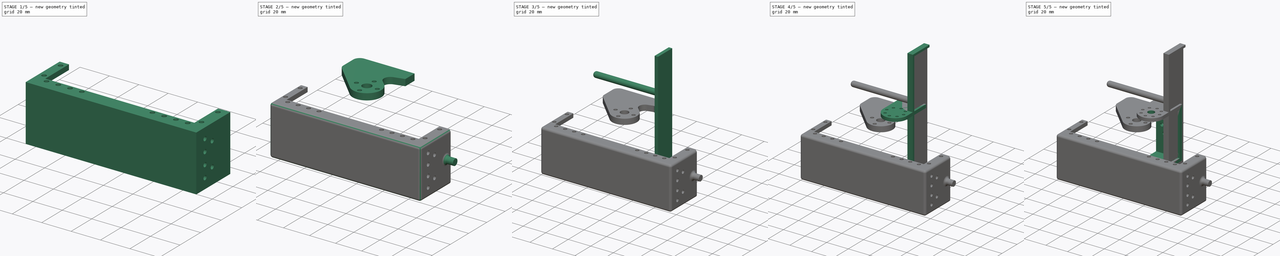
[diagram: build sequence overview — one tinted view per stage of 5, left to right]
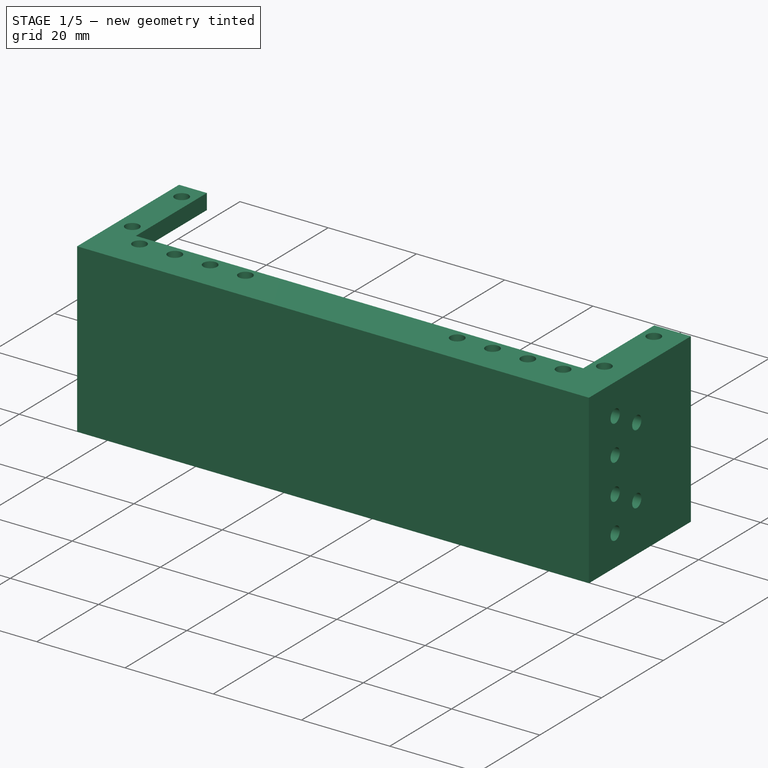
[diagram: stage 1 of 5 — iso view after this stage's code; geometry added in this stage tinted green]
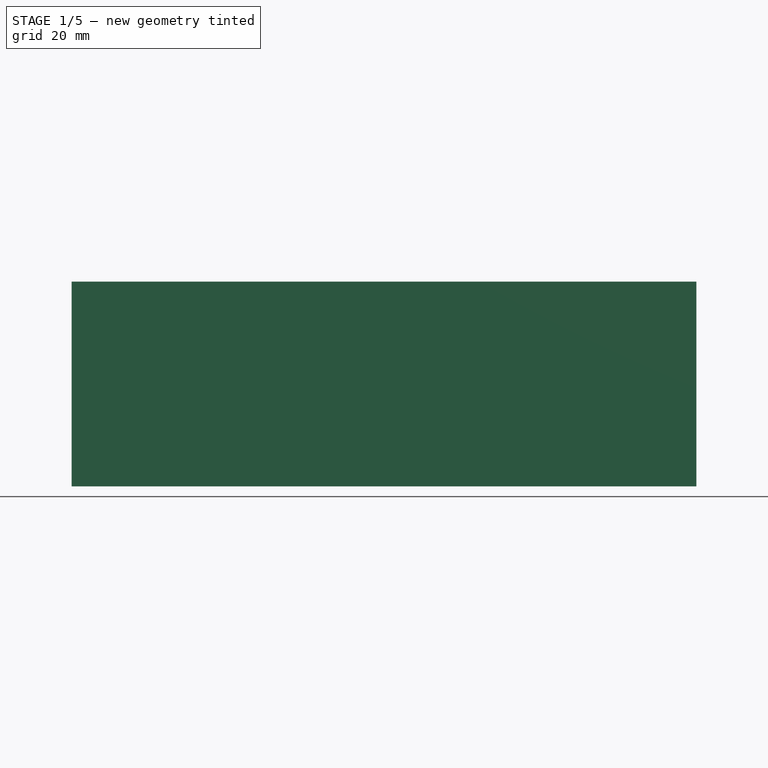
[diagram: stage 1 of 5 — front view after this stage's code; geometry added in this stage tinted green]
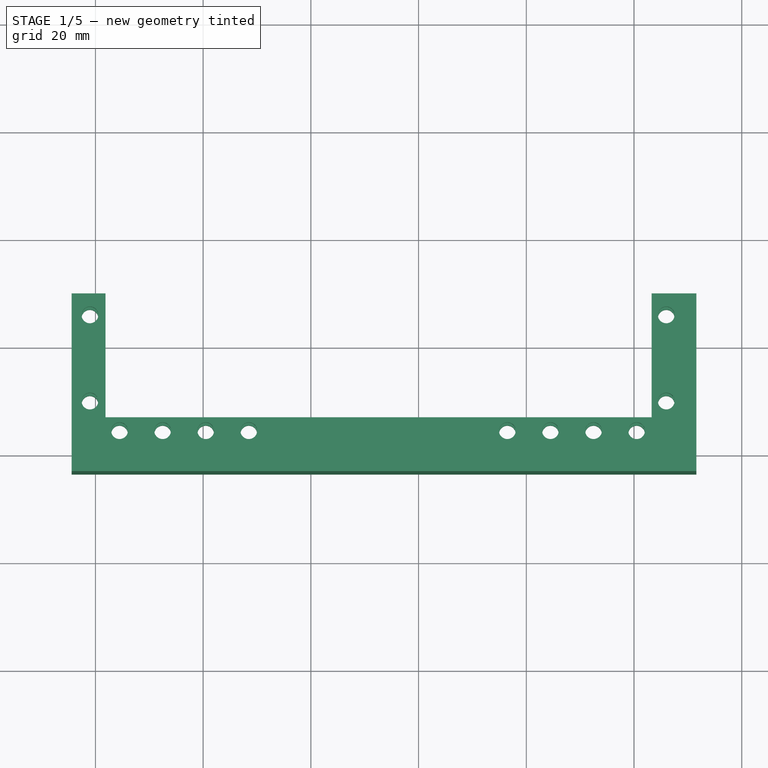
[diagram: stage 1 of 5 — top view after this stage's code; geometry added in this stage tinted green]
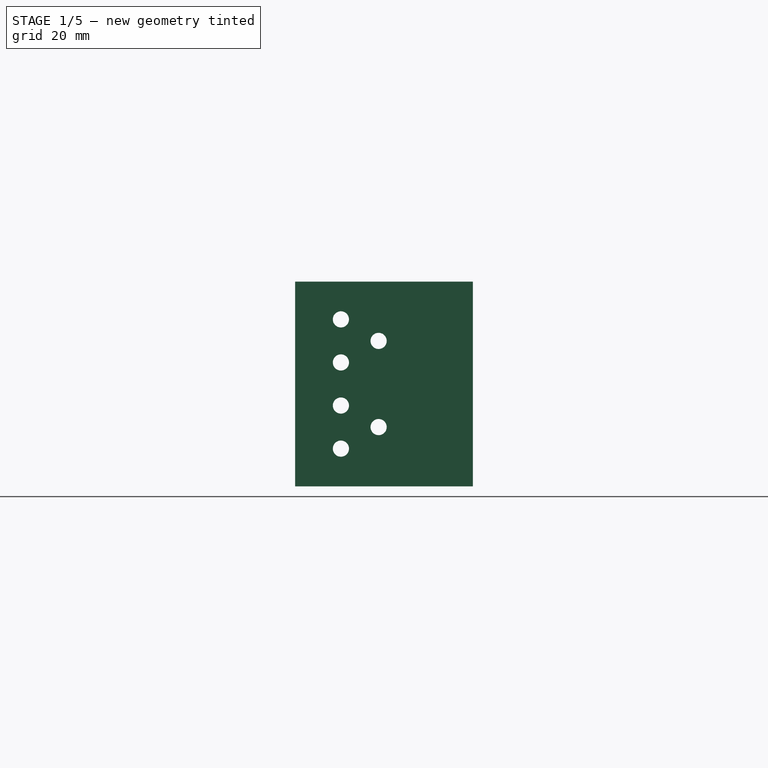
[diagram: stage 1 of 5 — right view after this stage's code; geometry added in this stage tinted green]
FCSTD DOCUMENT  (FreeCAD 1.1R20260414 (Git shallow))
Label: test4
License: All rights reserved
LicenseURL: https://en.wikipedia.org/wiki/All_rights_reserved
objects: Sketcher::SketchObject×26, Part::Feature×23, PartDesign::Pad×16, PartDesign::Hole×10, App::Point×8, PartDesign::Fillet×7, PartDesign::PolarPattern×5, App::Part×4, PartDesign::ShapeBinder×4, PartDesign::Body×4, PartDesign::Mirrored×3
note: 198 computed .brp shape members not serialized (recipe doc carries the construction recipe); baked Part::Feature solids carry a one-line shape summary decoded from their .brp

FEATURE [Part::Feature] Part__Feature  label="PRT0001"
  shape: bbox 32 x 50.5 x 38 mm, 671 faces (baked)
FEATURE [Part::Feature] Part__Feature001  label="PRT0002"
  Placement = pos=(0,0,-2) rot=(0,0,1;3.14159rad)
  shape: bbox 7.033 x 7.036 x 5.513 mm, 32 faces (baked)
FEATURE [Part::Feature] Part__Feature002  label="PRT0003"
  Placement = pos=(9.5,8.5,14.5) rot=(0,0.707107,0.707107;3.14159rad)
  shape: bbox 4.1 x 4.088 x 30.71 mm, 30 faces (baked)
FEATURE [Part::Feature] Part__Feature003  label="PRT0004"
  Placement = pos=(-9.5,8.5,14.5) rot=(0,0.707107,0.707107;3.14159rad)
  shape: bbox 4.1 x 4.088 x 30.71 mm, 30 faces (baked)
FEATURE [Part::Feature] Part__Feature004  label="PRT0005"
  Placement = pos=(10.5,-33,14.5) rot=(0,0.707107,0.707107;3.14159rad)
  shape: bbox 4.1 x 4.088 x 30.71 mm, 30 faces (baked)
FEATURE [Part::Feature] Part__Feature005  label="PRT0006"
  Placement = pos=(-10.5,-33,14.5) rot=(0,0.707107,0.707107;3.14159rad)
  shape: bbox 4.1 x 4.088 x 30.71 mm, 30 faces (baked)
FEATURE [Part::Feature] Part__Feature006  label="PRT0007"
  Placement = pos=(5.05,-15.19,-9.75) rot=(-1,0,0;1.5708rad)
  shape: bbox 9.902 x 4.902 x 9.405 mm, 93 faces (baked)
FEATURE [Part::Feature] Part__Feature007  label="PRT0008"
  Placement = pos=(-4.95,-15.19,-9.75) rot=(-1,0,0;1.5708rad)
  shape: bbox 9.902 x 4.902 x 9.405 mm, 93 faces (baked)
FEATURE [Part::Feature] Part__Feature008  label="PRT0009"
  Placement = pos=(0,0,-18.4) rot=(0,0.707107,0.707107;3.14159rad)
  shape: bbox 4.984 x 4.984 x 7 mm, 133 faces (baked)
FEATURE [Part::Feature] Part__Feature009  label="PRT0010"
  Placement = pos=(0,0,19.16) rot=(0,0,1;1.5708rad)
  shape: bbox 22 x 22 x 6.702 mm, 170 faces (baked)
FEATURE [Part::Feature] Part__Feature010  label="PRT0011"
  Placement = pos=(0,0,19.48) rot=(0,0.707107,0.707107;3.14159rad)
  shape: bbox 7.815 x 6.706 x 9.6 mm, 27 faces (baked)
FEATURE [App::Part] ASM0002_ASM
  Group = -> [Part__Feature,Part__Feature001,Part__Feature002,Part__Feature003,Part__Feature004,Part__Feature005,Part__Feature006,Part__Feature007,Part__Feature008,Part__Feature009,Part__Feature010]
  Origin = -> Origin
FEATURE [App::Point] Origin001
  Role = Origin
FEATURE [App::Part] ASM0001_ASM
  Group = -> [ASM0002_ASM]
  Origin = -> Origin002
  Placement = pos=(-5,-22,0) rot=(0,0,1;4.71239rad)
FEATURE [App::Point] Origin003
  Role = Origin
FEATURE [App::Point] Origin005  label="Origin006"
  Role = Origin
FEATURE [PartDesign::ShapeBinder] CopyPart__Feature
  TraceSupport = false
FEATURE [Sketcher::SketchObject] Sketch
  ArcFitTolerance = 1e-06
  AttachmentSupport = -> [CopyPart__Feature]
  ExternalTypes = [0]
  FullyConstrained = true
  MakeInternals = false
  MapMode = 5
  Placement = pos=(0,-38.5,0) rot=(1,0,0;1.5708rad)
  _ExternalGeoVersion = 1
  sketch-geometry (5):
    g0: LineSegment StartX=-44.42 StartY=-19 StartZ=0 EndX=69.58 EndY=-19 EndZ=0
    g1: LineSegment StartX=69.58 StartY=-19 StartZ=0 EndX=69.58 EndY=19 EndZ=0
    g2: LineSegment StartX=69.58 StartY=19 StartZ=0 EndX=-44.42 EndY=19 EndZ=0
    g3: LineSegment StartX=-44.42 StartY=19 StartZ=0 EndX=-44.42 EndY=-19 EndZ=0
    g4: GeomPoint [constr] X=12.58 Y=0 Z=0
  constraints (13):
    c: Coincident(g0,g1)
    c: Coincident(g1,g2)
    c: Coincident(g2,g3)
    c: Coincident(g3,g0)
    c: Horizontal(g0)
    c: Horizontal(g2)
    c: Vertical(g1)
    c: Vertical(g3)
    c: Symmetric(g2,g0,g4)
    c: Distance(g1,g3) = 114
    c: Distance(g0,g2) = 38
    c: PointOnObject(g4,g-1)
    c: Distance(g-2,g3) = 44.42
FEATURE [PartDesign::Pad] Pad
  Direction = (0,-1,0)
  Length = 5
  Length2 = 10
  Profile = -> Sketch
  ReferenceAxis = -> Sketch [N_Axis]
  Refine = true
  SideType = 0
  Suppressed = false
  Type = 0
  Type2 = 0
FEATURE [Sketcher::SketchObject] Sketch001
  ArcFitTolerance = 1e-06
  AttachmentSupport = -> [Pad]
  ExternalTypes = [0]
  FullyConstrained = true
  MakeInternals = false
  MapMode = 5
  Placement = pos=(0,-38.5,1.44e-14) rot=(0,0.707107,0.707107;3.14159rad)
  _ExternalGeoVersion = 1
  sketch-geometry (4):
    g0: LineSegment StartX=44.42 StartY=19 StartZ=0 EndX=-69.58 EndY=19 EndZ=0
    g1: LineSegment StartX=-69.58 StartY=19 StartZ=0 EndX=-69.58 EndY=15.5 EndZ=0
    g2: LineSegment StartX=-69.58 StartY=15.5 StartZ=0 EndX=44.42 EndY=15.5 EndZ=0
    g3: LineSegment StartX=44.42 StartY=15.5 StartZ=0 EndX=44.42 EndY=19 EndZ=0
  constraints (12):
    c: Coincident(g0,g1)
    c: Coincident(g1,g2)
    c: Coincident(g2,g3)
    c: Coincident(g3,g0)
    c: Horizontal(g0)
    c: Horizontal(g2)
    c: Vertical(g1)
    c: Vertical(g3)
    c: Distance(g-2,g3) = 44.42
    c: Distance(g2,g2) = 114
    c: Distance(g-1,g0) = 19
    c: Distance(g1,g1) = 3.5
FEATURE [PartDesign::Pad] Pad001
  BaseFeature = -> Pad
  Direction = (0,1,-2e-16)
  Length = 5
  Length2 = 10
  Profile = -> Sketch001
  ReferenceAxis = -> Sketch001 [N_Axis]
  Refine = true
  SideType = 0
  Suppressed = false
  Type = 0
  Type2 = 0
FEATURE [PartDesign::Body] Body001
  AllowCompound = true
  Group = -> [CopyPart__Feature001,Sketch006,Pad005,Sketch007,Hole001,PolarPattern,Sketch008,Hole002,Sketch009,Pad006,Sketch010,Pad007,Sketch011,Hole003,PolarPattern001,Sketch012,Hole004,Sketch014,Hole005,PolarPattern002]
  Origin = -> Origin011
  Placement = pos=(4,-74,-8.5) rot=(0,0,1;0rad)
  Tip = -> PolarPattern002
FEATURE [PartDesign::Mirrored] Mirrored
  BaseFeature = -> Pad001
  MirrorPlane = -> Sketch001 [H_Axis]
  Originals = -> [Pad001]
  Refine = true
  Suppressed = false
  TransformMode = 0
FEATURE [Sketcher::SketchObject] Sketch015
  ArcFitTolerance = 1e-06
  AttachmentSupport = -> [Mirrored]
  ExternalTypes = [0]
  FullyConstrained = true
  MakeInternals = false
  MapMode = 5
  Placement = pos=(0,-33.5,-5.31e-14) rot=(0,0.707107,0.707107;3.14159rad)
  _ExternalGeoVersion = 1
  sketch-geometry (8):
    g0: LineSegment StartX=-69.58 StartY=-15.5 StartZ=0 EndX=-69.58 EndY=-19 EndZ=0
    g1: LineSegment StartX=-69.58 StartY=-19 StartZ=0 EndX=-63.28 EndY=-19 EndZ=0
    g2: LineSegment StartX=-63.28 StartY=-19 StartZ=0 EndX=-63.28 EndY=-15.5 EndZ=0
    g3: LineSegment StartX=-63.28 StartY=-15.5 StartZ=0 EndX=-69.58 EndY=-15.5 EndZ=0
    g4: LineSegment StartX=44.42 StartY=-15.5 StartZ=0 EndX=38.12 EndY=-15.5 EndZ=0
    g5: LineSegment StartX=38.12 StartY=-15.5 StartZ=0 EndX=38.12 EndY=-19 EndZ=0
    g6: LineSegment StartX=38.12 StartY=-19 StartZ=0 EndX=44.42 EndY=-19 EndZ=0
    g7: LineSegment StartX=44.42 StartY=-19 StartZ=0 EndX=44.42 EndY=-15.5 EndZ=0
  constraints (24):
    c: Coincident(g0,g1)
    c: Coincident(g1,g2)
    c: Coincident(g2,g3)
    c: Coincident(g3,g0)
    c: Vertical(g0)
    c: Vertical(g2)
    c: Horizontal(g1)
    c: Horizontal(g3)
    c: Distance(g0,g2) = 6.3
    c: Distance(g1,g3) = 3.5
    c: Coincident(g4,g5)
    c: Coincident(g5,g6)
    c: Coincident(g6,g7)
    c: Coincident(g7,g4)
    c: Horizontal(g4)
    c: Horizontal(g6)
    c: Vertical(g5)
    c: Vertical(g7)
    c: Distance(g-2,g7) = 44.42
    c: Distance(g6,g6) = 6.3
    c: Distance(g7,g7) = 3.5
    c: Distance(g-2,g0) = 69.58
    c: Distance(g-1,g1) = 19
    c: Distance(g-1,g6) = 19
FEATURE [PartDesign::Pad] Pad008
  BaseFeature = -> Mirrored
  Direction = (0,1,1.8e-15)
  Length = 23
  Length2 = 10
  Profile = -> Sketch015
  ReferenceAxis = -> Sketch015 [N_Axis]
  Refine = true
  SideType = 0
  Suppressed = false
  Type = 0
  Type2 = 0
FEATURE [PartDesign::Mirrored] Mirrored001
  BaseFeature = -> Pad008
  MirrorPlane = -> Sketch015 [H_Axis]
  Originals = -> [Pad008]
  Refine = true
  Suppressed = false
  TransformMode = 0
FEATURE [Sketcher::SketchObject] Sketch016
  ArcFitTolerance = 1e-06
  AttachmentSupport = -> [Mirrored001]
  ExternalGeometry = -> [Mirrored001]
  ExternalTypes = [0,0]
  FullyConstrained = true
  MakeInternals = false
  MapMode = 5
  Placement = pos=(0,-1.18e-14,-19) rot=(1,0,0;3.14159rad)
  _ExternalGeoVersion = 1
  sketch-geometry (12):
    g0: Circle CenterX=-35.52 CenterY=36 CenterZ=0 NormalX=0 NormalY=0 NormalZ=1 AngleXU=0 Radius=1.25
    g1: Circle CenterX=-27.52 CenterY=36 CenterZ=0 NormalX=0 NormalY=0 NormalZ=1 AngleXU=0 Radius=1.25
    g2: Circle CenterX=-19.52 CenterY=36 CenterZ=0 NormalX=0 NormalY=0 NormalZ=1 AngleXU=0 Radius=1.25
    g3: Circle CenterX=-11.52 CenterY=36 CenterZ=0 NormalX=0 NormalY=0 NormalZ=1 AngleXU=0 Radius=1.25
    g4: Circle CenterX=60.48 CenterY=36 CenterZ=0 NormalX=0 NormalY=0 NormalZ=1 AngleXU=0 Radius=1.25
    g5: Circle CenterX=52.48 CenterY=36 CenterZ=0 NormalX=0 NormalY=0 NormalZ=1 AngleXU=0 Radius=1.25
    g6: Circle CenterX=44.48 CenterY=36 CenterZ=0 NormalX=0 NormalY=0 NormalZ=1 AngleXU=0 Radius=1.25
    g7: Circle CenterX=36.48 CenterY=36 CenterZ=0 NormalX=0 NormalY=0 NormalZ=1 AngleXU=0 Radius=1.25
    g8: Circle CenterX=-41.02 CenterY=30.5 CenterZ=0 NormalX=0 NormalY=0 NormalZ=1 AngleXU=0 Radius=1.25
    g9: Circle CenterX=-41.02 CenterY=14.5 CenterZ=0 NormalX=0 NormalY=0 NormalZ=1 AngleXU=0 Radius=1.25
    g10: Circle CenterX=65.98 CenterY=30.5 CenterZ=0 NormalX=0 NormalY=0 NormalZ=1 AngleXU=0 Radius=1.25
    g11: Circle CenterX=65.98 CenterY=14.5 CenterZ=0 NormalX=0 NormalY=0 NormalZ=1 AngleXU=0 Radius=1.25
  constraints (36):
    c: Diameter(g0) = 2.5
    c: Distance(g0,g-1) = 36
    c: Equal(g1,g0)
    c: Equal(g2,g1)
    c: Equal(g3,g2)
    c: Distance(g1,g-1) = 36
    c: Distance(g2,g-1) = 36
    c: Distance(g3,g-1) = 36
    c: Distance(g0,g1) = 8
    c: Distance(g1,g2) = 8
    c: Distance(g2,g3) = 8
    c: Equal(g3,g7)
    c: Equal(g7,g6)
    c: Equal(g6,g5)
    c: Equal(g5,g4)
    c: Distance(g4,g-3) = 9.1
    c: Distance(g4,g-1) = 36
    c: Distance(g5,g-1) = 36
    c: Distance(g6,g-1) = 36
    c: Distance(g7,g-1) = 36
    c: Distance(g4,g5) = 8
    c: Distance(g5,g6) = 8
    c: Distance(g7,g6) = 8
    c: Diameter(g8) = 2.5
    c: Distance(g8,g-1) = 30.5
    c: Equal(g9,g8)
    c: Distance(g9,g8) = 16
    c: Equal(g10,g4)
    c: Distance(g10,g-3) = 3.6
    c: Distance(g10,g-1) = 30.5
    c: Equal(g11,g10)
    c: DistanceY(g11,g10) = 16
    c: Distance(g11,g-3) = 3.6
    c: Distance(g8,g-4) = 3.4
    c: Distance(g9,g-4) = 3.4
    c: Distance(g0,g-4) = 8.9
FEATURE [PartDesign::Hole] Hole
  BaseFeature = -> Mirrored001
  BaseProfileType = 7
  CustomThreadClearance = 0
  Depth = 4
  DepthType = 0
  Diameter = 3.1
  DrillForDepth = false
  DrillPoint = 1
  DrillPointAngle = 118
  HoleCutCountersinkAngle = 90
  HoleCutCustomValues = false
  HoleCutDepth = 0
  HoleCutDiameter = 0
  HoleCutType = 0
  ModelThread = false
  Profile = -> Sketch016
  Refine = true
  Suppressed = false
  Tapered = false
  TaperedAngle = 90
  ThreadClass = 0
  ThreadDepth = 4
  ThreadDepthType = 0
  ThreadDiameter = 2.5
  ThreadDirection = 0
  ThreadFit = 2
  ThreadSize = 8
  ThreadType = 1
  Threaded = false
  UseCustomThreadClearance = false
FEATURE [PartDesign::Mirrored] Mirrored002
  BaseFeature = -> Hole
  MirrorPlane = -> XY_Plane002
  Originals = -> [Hole]
  Refine = true
  Suppressed = false
  TransformMode = 0
FEATURE [PartDesign::Body] Body002
  AllowCompound = true
  Group = -> [CopyPart__Feature009,Sketch018,Pad009,Sketch002,Hole008,Sketch019,Hole009,PolarPattern003,Fillet001,Sketch023,Pad011,Fillet003,Sketch031,Pad017,Fillet005]
  Origin = -> Origin012
  Placement = pos=(-5,-22,0) rot=(0,0,1;0rad)
  Tip = -> Fillet005
FEATURE [Sketcher::SketchObject] Sketch032
  ArcFitTolerance = 1e-06
  AttachmentSupport = -> [Mirrored002]
  ExternalTypes = [0]
  FullyConstrained = true
  MakeInternals = false
  MapMode = 5
  Placement = pos=(69.58,6.04e-14,0) rot=(0.57735,0.57735,0.57735;2.0944rad)
  _ExternalGeoVersion = 1
  sketch-geometry (10):
    g0: LineSegment StartX=-43.5 StartY=19 StartZ=0 EndX=-43.5 EndY=-19 EndZ=0
    g1: LineSegment StartX=-43.5 StartY=-19 StartZ=0 EndX=-10.5 EndY=-19 EndZ=0
    g2: LineSegment StartX=-10.5 StartY=-19 StartZ=0 EndX=-10.5 EndY=19 EndZ=0
    g3: LineSegment StartX=-43.5 StartY=19 StartZ=0 EndX=-10.5 EndY=19 EndZ=0
    g4: Circle CenterX=-35 CenterY=4 CenterZ=0 NormalX=0 NormalY=0 NormalZ=1 AngleXU=0 Radius=1.5
    g5: Circle CenterX=-35 CenterY=-4 CenterZ=0 NormalX=0 NormalY=0 NormalZ=1 AngleXU=0 Radius=1.5
    g6: Circle CenterX=-35 CenterY=-12 CenterZ=0 NormalX=0 NormalY=0 NormalZ=1 AngleXU=0 Radius=1.5
    g7: Circle CenterX=-35 CenterY=12 CenterZ=0 NormalX=0 NormalY=0 NormalZ=1 AngleXU=0 Radius=1.5
    g8: Circle CenterX=-28 CenterY=8 CenterZ=0 NormalX=0 NormalY=0 NormalZ=1 AngleXU=0 Radius=1.5
    g9: Circle CenterX=-28 CenterY=-8 CenterZ=0 NormalX=0 NormalY=0 NormalZ=1 AngleXU=0 Radius=1.5
  constraints (30):
    c: Coincident(g0,g1)
    c: Coincident(g1,g2)
    c: Vertical(g0)
    c: Vertical(g2)
    c: Horizontal(g1)
    c: Distance(g0,g2) = 33
    c: Distance(g1,g0) = 38
    c: Coincident(g3,g0)
    c: Coincident(g3,g2)
    c: Horizontal(g3)
    c: Distance(g-2,g2) = 10.5
    c: Distance(g-1,g3) = 19
    c: Diameter(g4) = 3
    c: Diameter(g5) = 3
    c: Diameter(g6) = 3
    c: Diameter(g7) = 3
    c: Distance(g7,g-2) = 35
    c: Distance(g4,g-2) = 35
    c: Distance(g5,g-2) = 35
    c: Distance(g6,g-2) = 35
    c: Distance(g7,g-1) = 12
    c: Distance(g7,g4) = 8
    c: Distance(g6,g-1) = 12
    c: Distance(g5,g6) = 8
    c: Diameter(g8) = 3
    c: Diameter(g9) = 3
    c: Distance(g8,g-1) = 8
    c: Distance(g9,g-1) = 8
    c: Distance(g8,g-2) = 28
    c: Distance(g9,g-2) = 28
FEATURE [PartDesign::Pad] Pad018
  BaseFeature = -> Mirrored002
  Direction = (1,0,0)
  Length = 2
  Length2 = 10
  Profile = -> Sketch032
  ReferenceAxis = -> Sketch032 [N_Axis]
  Refine = true
  SideType = 0
  Suppressed = false
  Type = 0
  Type2 = 0
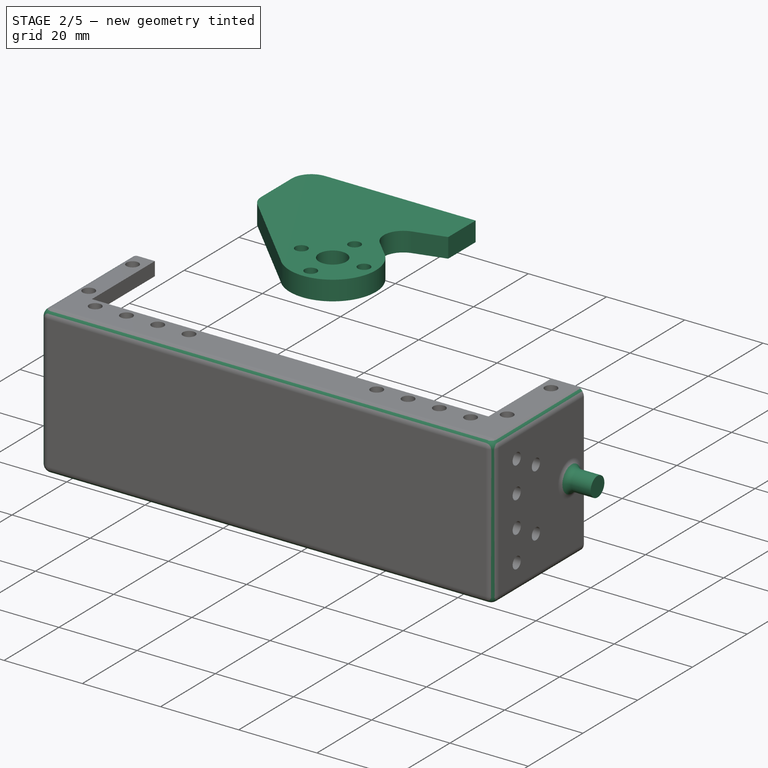
[diagram: stage 2 of 5 — iso view after this stage's code; geometry added in this stage tinted green]
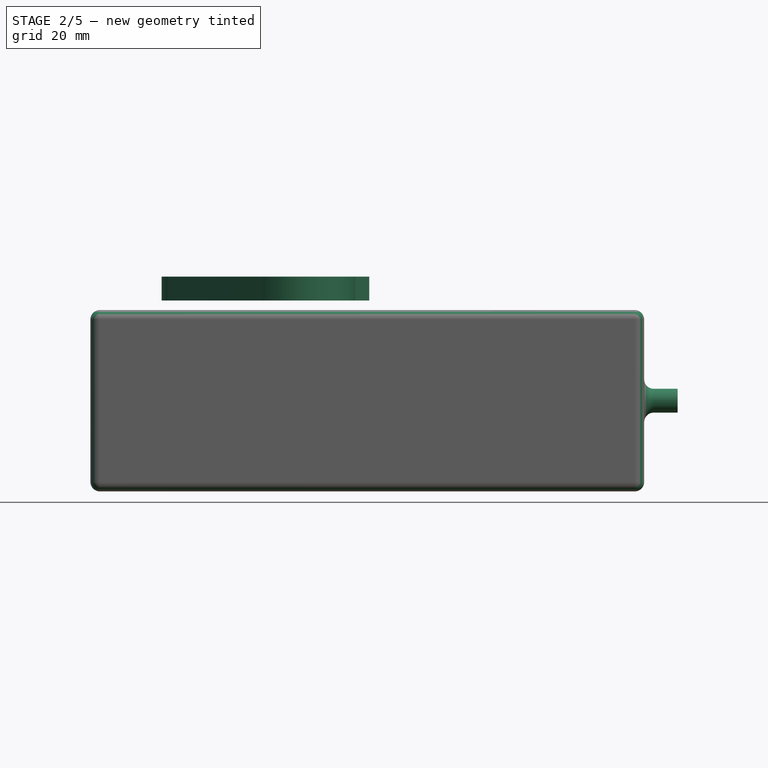
[diagram: stage 2 of 5 — front view after this stage's code; geometry added in this stage tinted green]
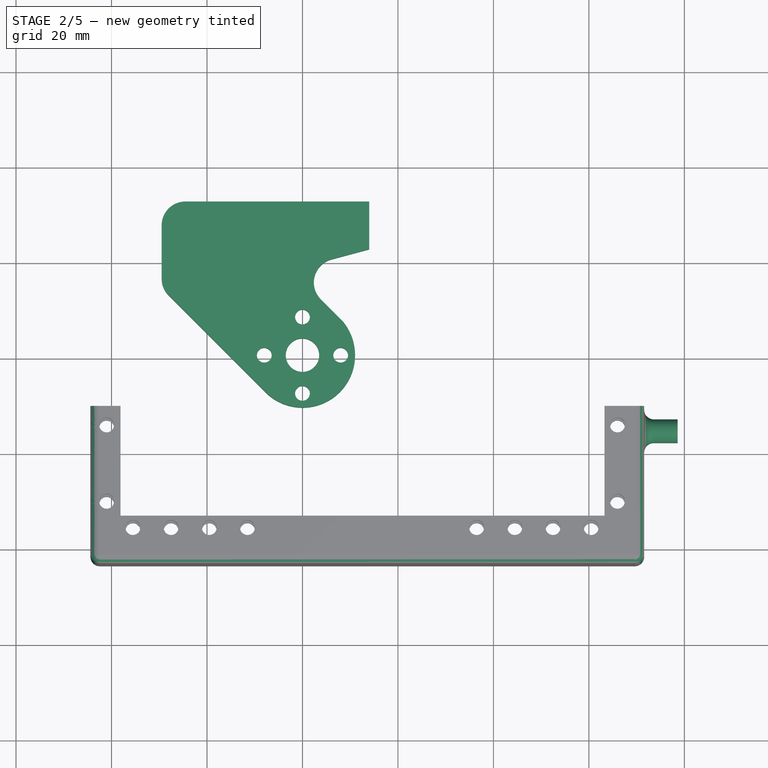
[diagram: stage 2 of 5 — top view after this stage's code; geometry added in this stage tinted green]
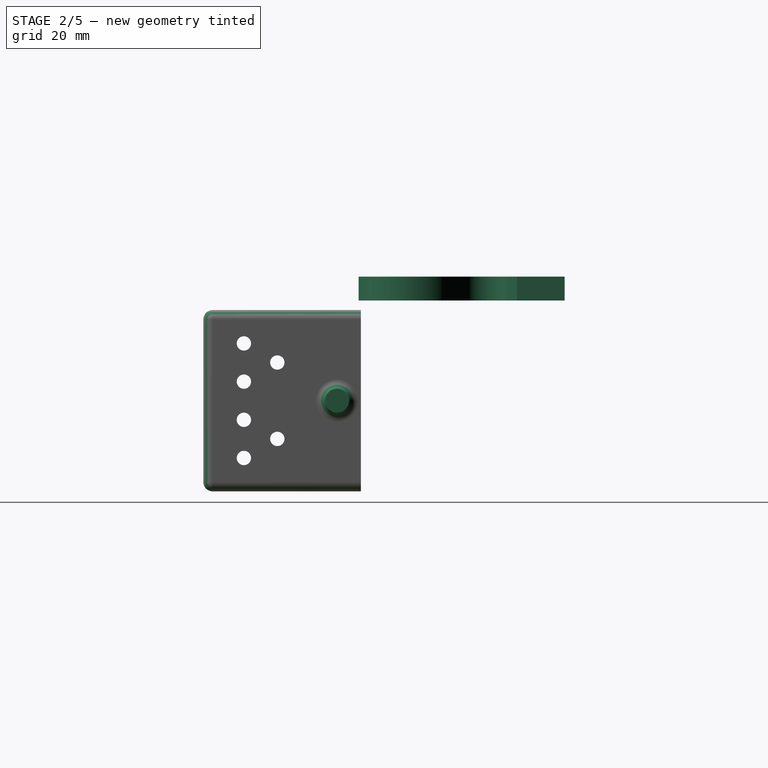
[diagram: stage 2 of 5 — right view after this stage's code; geometry added in this stage tinted green]
FEATURE [PartDesign::ShapeBinder] CopyPart__Feature009
  Placement = pos=(0,0,19.16) rot=(0,0,1;1.5708rad)
  TraceSupport = false
FEATURE [App::Point] Origin013  label="Origin015"
  Role = Origin
FEATURE [Sketcher::SketchObject] Sketch018
  ArcFitTolerance = 1e-06
  AttachmentSupport = -> [CopyPart__Feature009]
  ExternalTypes = [0]
  FullyConstrained = true
  MakeInternals = false
  MapMode = 5
  Placement = pos=(0,0,21) rot=(0,0,1;1.5708rad)
  _ExternalGeoVersion = 1
  sketch-geometry (7):
    g0: ArcOfCircle CenterX=0.0210204 CenterY=-0.0225888 CenterZ=0 NormalX=0 NormalY=0 NormalZ=1 AngleXU=0 Radius=11 StartAngle=2.28533 EndAngle=5.42692
    g1: LineSegment StartX=7.22894 StartY=-8.33198 StartZ=0 EndX=17.8355 EndY=2.27462 EndZ=0
    g2: LineSegment StartX=-7.1869 StartY=8.2868 StartZ=0 EndX=14.0263 EndY=29.5 EndZ=0
    g3: LineSegment StartX=17.8355 StartY=2.27462 StartZ=0 EndX=22.1963 EndY=-14 EndZ=0
    g4: LineSegment StartX=22.1963 StartY=-14 StartZ=0 EndX=32.1963 EndY=-14 EndZ=0
    g5: LineSegment StartX=32.1963 StartY=-14 StartZ=0 EndX=32.1963 EndY=29.5 EndZ=0
    g6: LineSegment StartX=14.0263 StartY=29.5 StartZ=0 EndX=32.1963 EndY=29.5 EndZ=0
  constraints (22):
    c: Distance(g0,g0) = 22
    c: Angle(g0) = 3.14159
    c: Distance(g1) = 15
    c: Angle(g-1,g1) = 0.785398
    c: Coincident(g1,g0)
    c: Distance(g2) = 30
    c: Angle(g-1,g2) = 0.785398
    c: Coincident(g2,g0)
    c: Angle(g-1,g3) = -1.309
    c: Coincident(g3,g1)
    c: Coincident(g4,g3)
    c: Horizontal(g4)
    c: Coincident(g5,g4)
    c: Vertical(g5)
    c: Coincident(g6,g2)
    c: Coincident(g6,g5)
    c: Horizontal(g6)
    c: DistanceY(g5,g5) = 43.5
    c: Distance(g1,g-1) = 17.98
    c: Distance(g-1,g6) = 29.5
    c: Distance(g4,g4) = 10
    c: DistanceX(g6,g6) = 18.17
FEATURE [PartDesign::Pad] Pad009
  Direction = (0,0,1)
  Length = 5
  Length2 = 10
  Placement = pos=(0,0,19.16) rot=(0,0,1;1.5708rad)
  Profile = -> Sketch018
  ReferenceAxis = -> Sketch018 [N_Axis]
  Refine = true
  SideType = 0
  Suppressed = false
  Type = 0
  Type2 = 0
FEATURE [Sketcher::SketchObject] Sketch002
  ArcFitTolerance = 1e-06
  ExternalTypes = [0]
  FullyConstrained = true
  MakeInternals = false
  MapMode = 5
  Placement = pos=(0,0,26) rot=(0,0,1;1.5708rad)
  _ExternalGeoVersion = 1
  sketch-geometry (1):
    g0: Circle CenterX=0 CenterY=0 CenterZ=0 NormalX=0 NormalY=0 NormalZ=1 AngleXU=0 Radius=3
  constraints (2):
    c: Diameter(g0) = 6
    c: Coincident(g0,g-1)
FEATURE [PartDesign::Hole] Hole008
  BaseFeature = -> Pad009
  BaseProfileType = 7
  CustomThreadClearance = 0
  Depth = 5
  DepthType = 0
  Diameter = 7
  DrillForDepth = false
  DrillPoint = 1
  DrillPointAngle = 118
  HoleCutCountersinkAngle = 90
  HoleCutCustomValues = false
  HoleCutDepth = 0
  HoleCutDiameter = 0
  HoleCutType = 0
  ModelThread = false
  Placement = pos=(0,0,19.16) rot=(0,0,1;1.5708rad)
  Profile = -> Sketch002
  Refine = true
  Suppressed = false
  Tapered = false
  TaperedAngle = 90
  ThreadClass = 0
  ThreadDepth = 5
  ThreadDepthType = 0
  ThreadDiameter = 6
  ThreadDirection = 0
  ThreadFit = 2
  ThreadSize = 14
  ThreadType = 1
  Threaded = false
  UseCustomThreadClearance = false
FEATURE [Sketcher::SketchObject] Sketch019
  ArcFitTolerance = 1e-06
  ExternalTypes = [0]
  FullyConstrained = true
  MakeInternals = false
  MapMode = 5
  Placement = pos=(0,0,26) rot=(0,0,1;1.5708rad)
  _ExternalGeoVersion = 1
  sketch-geometry (1):
    g0: Circle CenterX=-8 CenterY=0 CenterZ=0 NormalX=0 NormalY=0 NormalZ=1 AngleXU=0 Radius=1.1
  constraints (3):
    c: Diameter(g0) = 2.2
    c: PointOnObject(g0,g-1)
    c: Distance(g0,g-2) = 8
FEATURE [PartDesign::Hole] Hole009
  BaseFeature = -> Hole008
  BaseProfileType = 7
  CustomThreadClearance = 0
  Depth = 5
  DepthType = 0
  Diameter = 3.1
  DrillForDepth = false
  DrillPoint = 0
  DrillPointAngle = 118
  HoleCutCountersinkAngle = 90
  HoleCutCustomValues = false
  HoleCutDepth = 0
  HoleCutDiameter = 0
  HoleCutType = 0
  ModelThread = false
  Placement = pos=(0,0,19.16) rot=(0,0,1;1.5708rad)
  Profile = -> Sketch019
  Refine = true
  Suppressed = false
  Tapered = false
  TaperedAngle = 90
  ThreadClass = 0
  ThreadDepth = 5
  ThreadDepthType = 0
  ThreadDiameter = 2.5
  ThreadDirection = 0
  ThreadFit = 2
  ThreadSize = 8
  ThreadType = 1
  Threaded = false
  UseCustomThreadClearance = false
FEATURE [PartDesign::PolarPattern] PolarPattern003
  Angle = 360
  Axis = -> Sketch019 [N_Axis]
  BaseFeature = -> Hole009
  Mode = 0
  Occurrences = 4
  Offset = 120
  Originals = -> [Hole009]
  Placement = pos=(0,0,19.16) rot=(0,0,1;1.5708rad)
  Refine = true
  SpacingPattern = [0]
  Spacings = [-1,-1,-1]
  Suppressed = false
  TransformMode = 0
FEATURE [PartDesign::Fillet] Fillet001
  Base = -> PolarPattern003 [Edge29,Edge5,Edge8]
  BaseFeature = -> PolarPattern003
  Placement = pos=(0,0,19.16) rot=(0,0,1;1.5708rad)
  Radius = 5
  Refine = true
  SupportTransform = false
  Suppressed = false
  UseAllEdges = false
FEATURE [Sketcher::SketchObject] Sketch033
  ArcFitTolerance = 1e-06
  AttachmentSupport = -> [Pad018]
  ExternalTypes = [0]
  FullyConstrained = true
  MakeInternals = false
  MapMode = 5
  Placement = pos=(71.58,0,0) rot=(0.57735,0.57735,0.57735;2.0944rad)
  _ExternalGeoVersion = 1
  sketch-geometry (1):
    g0: Circle CenterX=-15.5 CenterY=0 CenterZ=0 NormalX=0 NormalY=0 NormalZ=1 AngleXU=0 Radius=2.5
  constraints (3):
    c: Diameter(g0) = 5
    c: PointOnObject(g0,g-1)
    c: Distance(g0,g-1) = 15.5
FEATURE [PartDesign::Pad] Pad019
  BaseFeature = -> Pad018
  Direction = (1,0,0)
  Length = 7
  Length2 = 10
  Profile = -> Sketch033
  ReferenceAxis = -> Sketch033 [N_Axis]
  Refine = true
  SideType = 0
  Suppressed = false
  Type = 0
  Type2 = 0
FEATURE [PartDesign::Fillet] Fillet
  Base = -> Pad019 [Edge79]
  BaseFeature = -> Pad019
  Radius = 2
  Refine = true
  SupportTransform = false
  Suppressed = false
  UseAllEdges = false
FEATURE [PartDesign::Fillet] Fillet006
  Base = -> Fillet [Edge3,Edge4,Edge2,Edge14,Edge15,Edge22,Edge16,Edge35]
  BaseFeature = -> Fillet
  Radius = 2
  Refine = true
  SupportTransform = false
  Suppressed = false
  UseAllEdges = false
FEATURE [PartDesign::Body] Body
  AllowCompound = true
  Group = -> [CopyPart__Feature,Sketch,Pad,Sketch001,Pad001,Mirrored,Sketch015,Pad008,Mirrored001,Sketch016,Hole,Mirrored002,Sketch032,Pad018,Sketch033,Pad019,Fillet,Fillet006]
  Origin = -> Origin004
  Tip = -> Fillet006
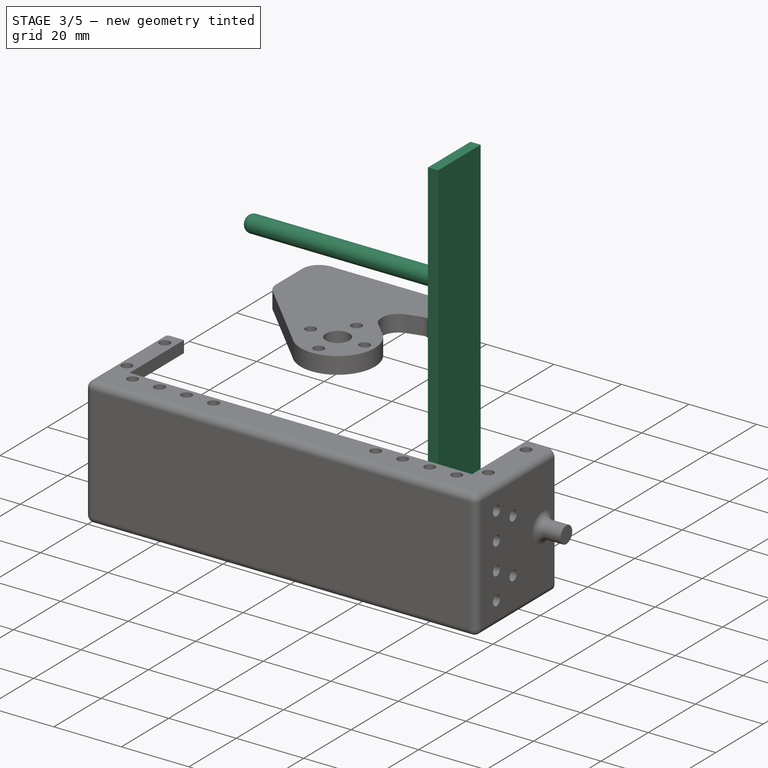
[diagram: stage 3 of 5 — iso view after this stage's code; geometry added in this stage tinted green]
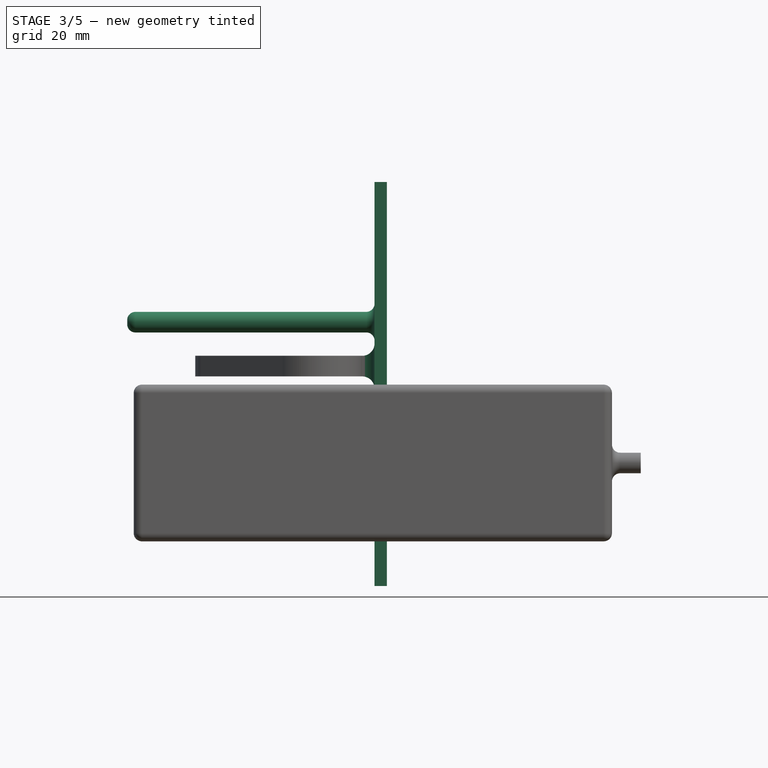
[diagram: stage 3 of 5 — front view after this stage's code; geometry added in this stage tinted green]
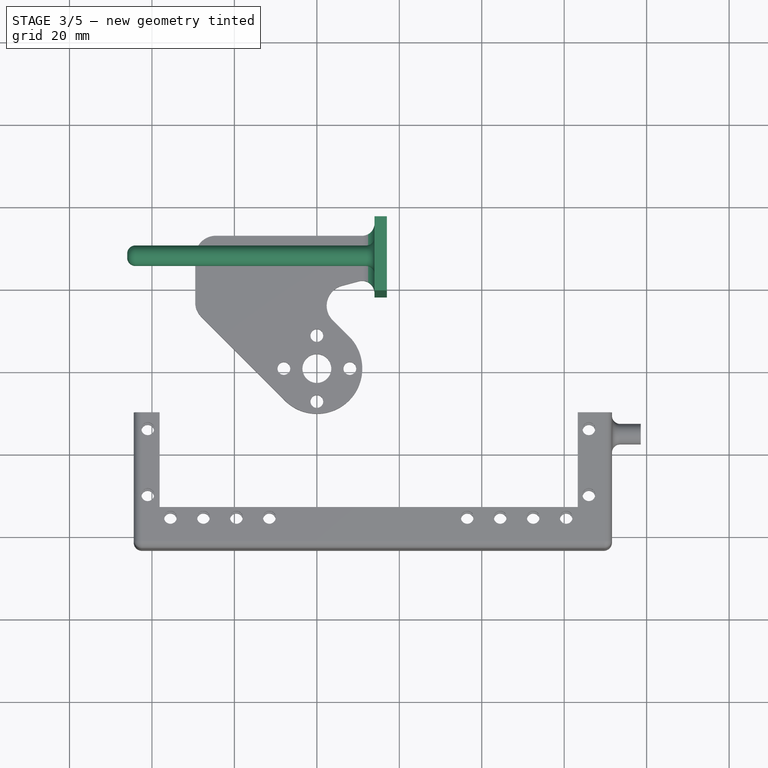
[diagram: stage 3 of 5 — top view after this stage's code; geometry added in this stage tinted green]
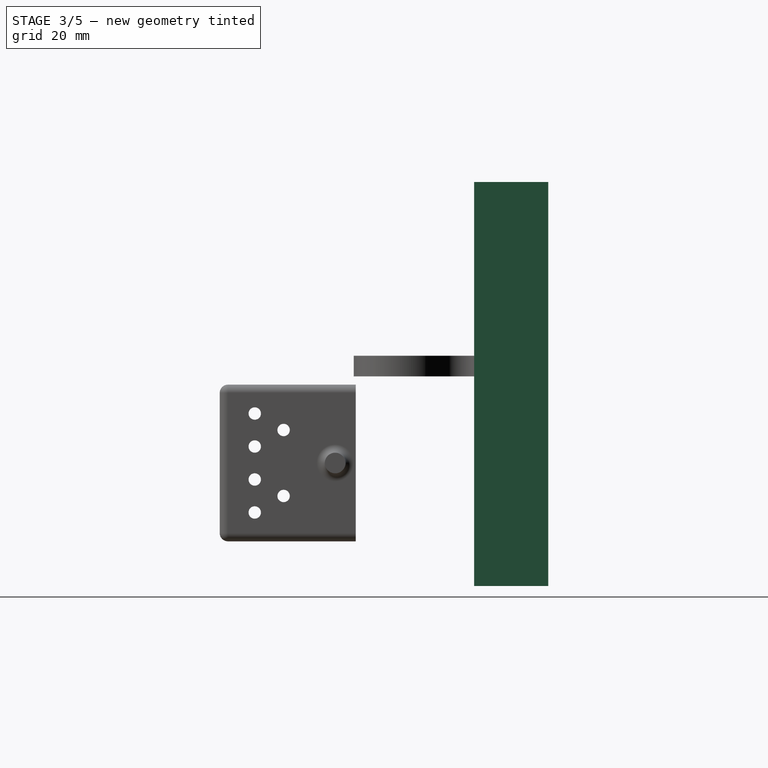
[diagram: stage 3 of 5 — right view after this stage's code; geometry added in this stage tinted green]
FEATURE [Sketcher::SketchObject] Sketch023
  ArcFitTolerance = 1e-06
  AttachmentSupport = -> [Fillet001]
  ExternalTypes = [0]
  FullyConstrained = true
  MakeInternals = false
  MapMode = 5
  Placement = pos=(14,-1.5e-15,19.16) rot=(0.57735,0.57735,0.57735;2.0944rad)
  _ExternalGeoVersion = 1
  sketch-geometry (4):
    g0: LineSegment StartX=18.2 StartY=-49 StartZ=0 EndX=36.2 EndY=-49 EndZ=0
    g1: LineSegment StartX=36.2 StartY=-49 StartZ=0 EndX=36.2 EndY=49 EndZ=0
    g2: LineSegment StartX=36.2 StartY=49 StartZ=0 EndX=18.2 EndY=49 EndZ=0
    g3: LineSegment StartX=18.2 StartY=49 StartZ=0 EndX=18.2 EndY=-49 EndZ=0
  constraints (12):
    c: Coincident(g0,g1)
    c: Coincident(g1,g2)
    c: Vertical(g1)
    c: Horizontal(g0)
    c: Horizontal(g2)
    c: Distance(g2,g1) = 18
    c: Distance(g0,g2) = 98
    c: Coincident(g3,g2)
    c: Coincident(g3,g0)
    c: Vertical(g3)
    c: Distance(g-1,g0) = 49
    c: Distance(g-2,g3) = 18.2
FEATURE [PartDesign::Pad] Pad011
  BaseFeature = -> Fillet001
  Direction = (1,0,0)
  Length = 3
  Length2 = 10
  Placement = pos=(0,0,19.16) rot=(0,0,1;1.5708rad)
  Profile = -> Sketch023
  ReferenceAxis = -> Sketch023 [N_Axis]
  Refine = true
  SideType = 0
  Suppressed = false
  Type = 0
  Type2 = 0
FEATURE [PartDesign::ShapeBinder] CopyPart__Feature010
  Placement = pos=(0,0,19.16) rot=(0,0,1;1.5708rad)
  TraceSupport = false
FEATURE [App::Point] Origin015  label="Origin017"
  Role = Origin
FEATURE [Sketcher::SketchObject] Sketch024
  ArcFitTolerance = 1e-06
  ExternalTypes = [0]
  FullyConstrained = true
  MakeInternals = false
  MapMode = 5
  Placement = pos=(0,0,26) rot=(0,0,1;1.5708rad)
  _ExternalGeoVersion = 1
  sketch-geometry (1):
    g0: Circle CenterX=0 CenterY=0 CenterZ=0 NormalX=0 NormalY=0 NormalZ=1 AngleXU=0 Radius=3
  constraints (2):
    c: Diameter(g0) = 6
    c: Coincident(g0,g-1)
FEATURE [Sketcher::SketchObject] Sketch025
  ArcFitTolerance = 1e-06
  AttachmentSupport = -> [CopyPart__Feature010]
  ExternalTypes = [0]
  FullyConstrained = true
  MakeInternals = false
  MapMode = 5
  Placement = pos=(0,0,21) rot=(0,0,1;1.5708rad)
  _ExternalGeoVersion = 1
  sketch-geometry (7):
    g0: ArcOfCircle CenterX=0.0210204 CenterY=-0.0225888 CenterZ=0 NormalX=0 NormalY=0 NormalZ=1 AngleXU=0 Radius=11 StartAngle=2.28533 EndAngle=5.42692
    g1: LineSegment StartX=7.22894 StartY=-8.33198 StartZ=0 EndX=17.8355 EndY=2.27462 EndZ=0
    g2: LineSegment StartX=-7.1869 StartY=8.2868 StartZ=0 EndX=14.0263 EndY=29.5 EndZ=0
    g3: LineSegment StartX=17.8355 StartY=2.27462 StartZ=0 EndX=22.1963 EndY=-14 EndZ=0
    g4: LineSegment StartX=22.1963 StartY=-14 StartZ=0 EndX=32.1963 EndY=-14 EndZ=0
    g5: LineSegment StartX=32.1963 StartY=-14 StartZ=0 EndX=32.1963 EndY=29.5 EndZ=0
    g6: LineSegment StartX=14.0263 StartY=29.5 StartZ=0 EndX=32.1963 EndY=29.5 EndZ=0
  constraints (22):
    c: Distance(g0,g0) = 22
    c: Angle(g0) = 3.14159
    c: Distance(g1) = 15
    c: Angle(g-1,g1) = 0.785398
    c: Coincident(g1,g0)
    c: Distance(g2) = 30
    c: Angle(g-1,g2) = 0.785398
    c: Coincident(g2,g0)
    c: Angle(g-1,g3) = -1.309
    c: Coincident(g3,g1)
    c: Coincident(g4,g3)
    c: Horizontal(g4)
    c: Coincident(g5,g4)
    c: Vertical(g5)
    c: Coincident(g6,g2)
    c: Coincident(g6,g5)
    c: Horizontal(g6)
    c: DistanceY(g5,g5) = 43.5
    c: Distance(g1,g-1) = 17.98
    c: Distance(g-1,g6) = 29.5
    c: Distance(g4,g4) = 10
    c: DistanceX(g6,g6) = 18.17
FEATURE [PartDesign::Pad] Pad012
  Direction = (0,0,1)
  Length = 5
  Length2 = 10
  Placement = pos=(0,0,19.16) rot=(0,0,1;1.5708rad)
  Profile = -> Sketch025
  ReferenceAxis = -> Sketch025 [N_Axis]
  Refine = true
  SideType = 0
  Suppressed = false
  Type = 0
  Type2 = 0
FEATURE [PartDesign::Hole] Hole010
  BaseFeature = -> Pad012
  BaseProfileType = 7
  CustomThreadClearance = 0
  Depth = 5
  DepthType = 0
  Diameter = 7
  DrillForDepth = false
  DrillPoint = 1
  DrillPointAngle = 118
  HoleCutCountersinkAngle = 90
  HoleCutCustomValues = false
  HoleCutDepth = 0
  HoleCutDiameter = 0
  HoleCutType = 0
  ModelThread = false
  Placement = pos=(0,0,19.16) rot=(0,0,1;1.5708rad)
  Profile = -> Sketch024
  Refine = true
  Suppressed = false
  Tapered = false
  TaperedAngle = 90
  ThreadClass = 0
  ThreadDepth = 5
  ThreadDepthType = 0
  ThreadDiameter = 6
  ThreadDirection = 0
  ThreadFit = 2
  ThreadSize = 14
  ThreadType = 1
  Threaded = false
  UseCustomThreadClearance = false
FEATURE [Sketcher::SketchObject] Sketch026
  ArcFitTolerance = 1e-06
  ExternalTypes = [0]
  FullyConstrained = true
  MakeInternals = false
  MapMode = 5
  Placement = pos=(0,0,26) rot=(0,0,1;1.5708rad)
  _ExternalGeoVersion = 1
  sketch-geometry (1):
    g0: Circle CenterX=-8 CenterY=0 CenterZ=0 NormalX=0 NormalY=0 NormalZ=1 AngleXU=0 Radius=1.1
  constraints (3):
    c: Diameter(g0) = 2.2
    c: PointOnObject(g0,g-1)
    c: Distance(g0,g-2) = 8
FEATURE [PartDesign::Hole] Hole011
  BaseFeature = -> Hole010
  BaseProfileType = 7
  CustomThreadClearance = 0
  Depth = 5
  DepthType = 0
  Diameter = 3.1
  DrillForDepth = false
  DrillPoint = 0
  DrillPointAngle = 118
  HoleCutCountersinkAngle = 90
  HoleCutCustomValues = false
  HoleCutDepth = 0
  HoleCutDiameter = 0
  HoleCutType = 0
  ModelThread = false
  Placement = pos=(0,0,19.16) rot=(0,0,1;1.5708rad)
  Profile = -> Sketch026
  Refine = true
  Suppressed = false
  Tapered = false
  TaperedAngle = 90
  ThreadClass = 0
  ThreadDepth = 5
  ThreadDepthType = 0
  ThreadDiameter = 2.5
  ThreadDirection = 0
  ThreadFit = 2
  ThreadSize = 8
  ThreadType = 1
  Threaded = false
  UseCustomThreadClearance = false
FEATURE [PartDesign::PolarPattern] PolarPattern004
  Angle = 360
  Axis = -> Sketch026 [N_Axis]
  BaseFeature = -> Hole011
  Mode = 0
  Occurrences = 4
  Offset = 120
  Originals = -> [Hole011]
  Placement = pos=(0,0,19.16) rot=(0,0,1;1.5708rad)
  Refine = true
  SpacingPattern = [0]
  Spacings = [-1,-1,-1]
  Suppressed = false
  TransformMode = 0
FEATURE [PartDesign::Fillet] Fillet002
  Base = -> PolarPattern004 [Edge29,Edge5,Edge8]
  BaseFeature = -> PolarPattern004
  Placement = pos=(0,0,19.16) rot=(0,0,1;1.5708rad)
  Radius = 5
  Refine = true
  SupportTransform = false
  Suppressed = false
  UseAllEdges = false
FEATURE [PartDesign::Fillet] Fillet003
  Base = -> Pad011 [Edge13,Edge39,Edge29,Edge40]
  BaseFeature = -> Pad011
  Placement = pos=(0,0,19.16) rot=(0,0,1;1.5708rad)
  Radius = 3
  Refine = true
  SupportTransform = false
  Suppressed = false
  UseAllEdges = false
FEATURE [PartDesign::Body] Body003
  AllowCompound = true
  Group = -> [CopyPart__Feature010,Sketch025,Pad012,Sketch024,Hole010,Sketch026,Hole011,PolarPattern004,Fillet002,Sketch027,Pad013,Sketch028,Pad014,Sketch029,Pad015,Sketch030,Pad016,Fillet004]
  Origin = -> Origin014
  Placement = pos=(30,-22,47) rot=(0,1,0;3.14159rad)
  Tip = -> Fillet004
FEATURE [Part::Feature] Part__Feature022  label="Body008"
  Placement = pos=(-5,-22,0) rot=(0,0,1;0rad)
  shape: bbox 23 x 46 x 30 mm, 41 faces (baked)
FEATURE [Sketcher::SketchObject] Sketch031
  ArcFitTolerance = 1e-06
  AttachmentSupport = -> [Fillet003]
  ExternalTypes = [0,0]
  FullyConstrained = true
  MakeInternals = false
  MapMode = 5
  Placement = pos=(14,0,19.16) rot=(0.57735,-0.57735,-0.57735;2.0944rad)
  _ExternalGeoVersion = 1
  sketch-geometry (1):
    g0: Circle CenterX=-27.2 CenterY=15 CenterZ=0 NormalX=0 NormalY=0 NormalZ=1 AngleXU=0 Radius=2.5
  constraints (3):
    c: Distance(g0,g-2) = 27.2
    c: DistanceY(g-1,g0) = 15
    c: Diameter(g0) = 5
FEATURE [PartDesign::Pad] Pad017
  BaseFeature = -> Fillet003
  Direction = (-1,0,0)
  Length = 60
  Length2 = 10
  Placement = pos=(0,0,19.16) rot=(0,0,1;1.5708rad)
  Profile = -> Sketch031
  ReferenceAxis = -> Sketch031 [N_Axis]
  Refine = true
  SideType = 0
  Suppressed = false
  Type = 0
  Type2 = 0
FEATURE [PartDesign::Fillet] Fillet005
  Base = -> Pad017 [Face26]
  BaseFeature = -> Pad017
  Placement = pos=(0,0,19.16) rot=(0,0,1;1.5708rad)
  Radius = 2
  Refine = true
  SupportTransform = false
  Suppressed = false
  UseAllEdges = false
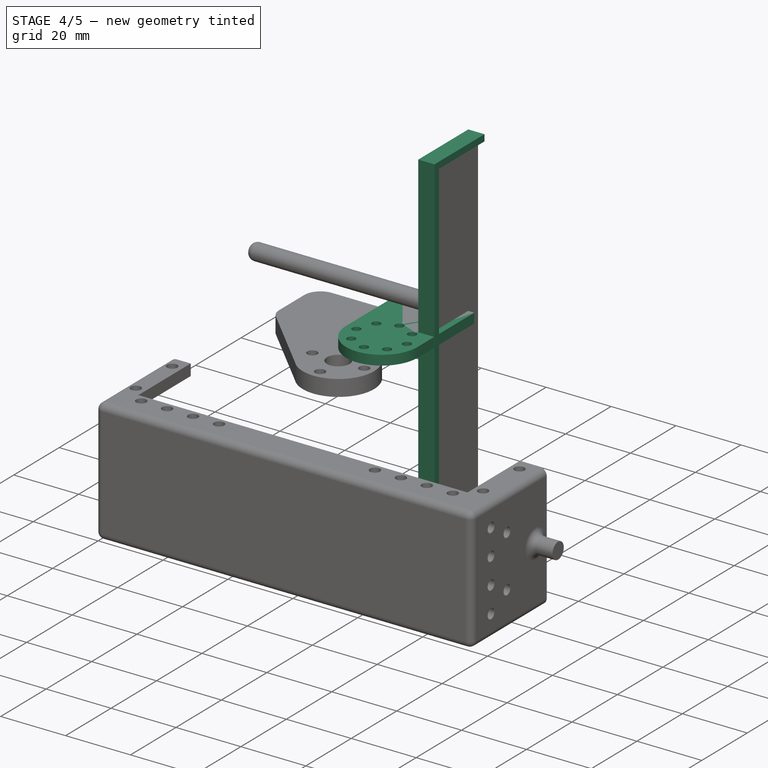
[diagram: stage 4 of 5 — iso view after this stage's code; geometry added in this stage tinted green]
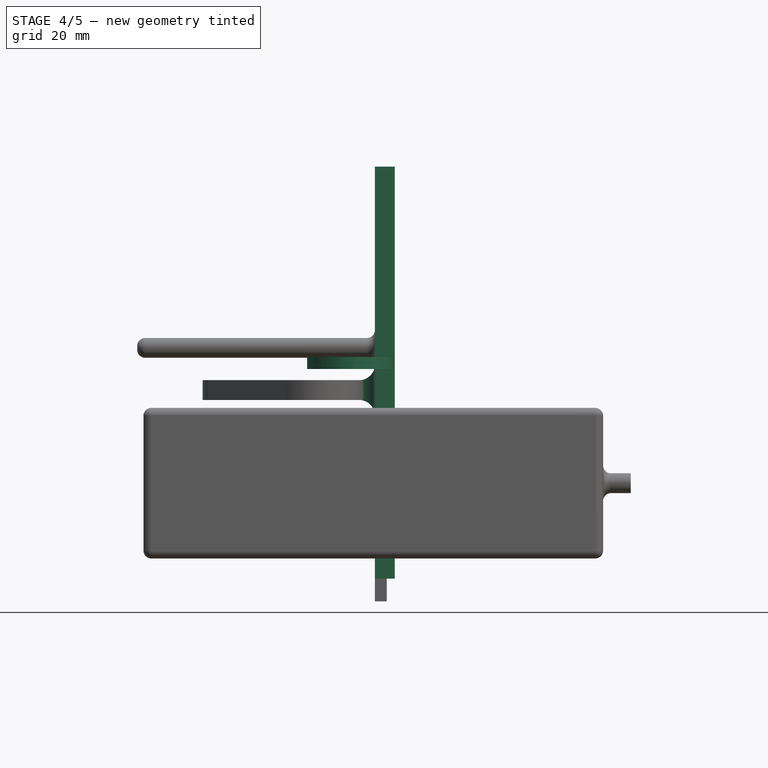
[diagram: stage 4 of 5 — front view after this stage's code; geometry added in this stage tinted green]
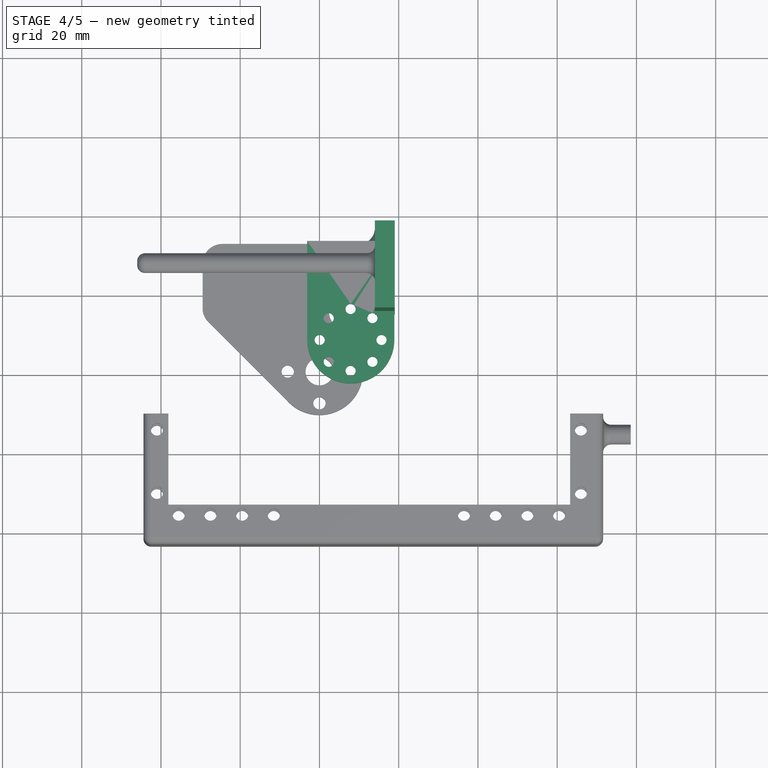
[diagram: stage 4 of 5 — top view after this stage's code; geometry added in this stage tinted green]
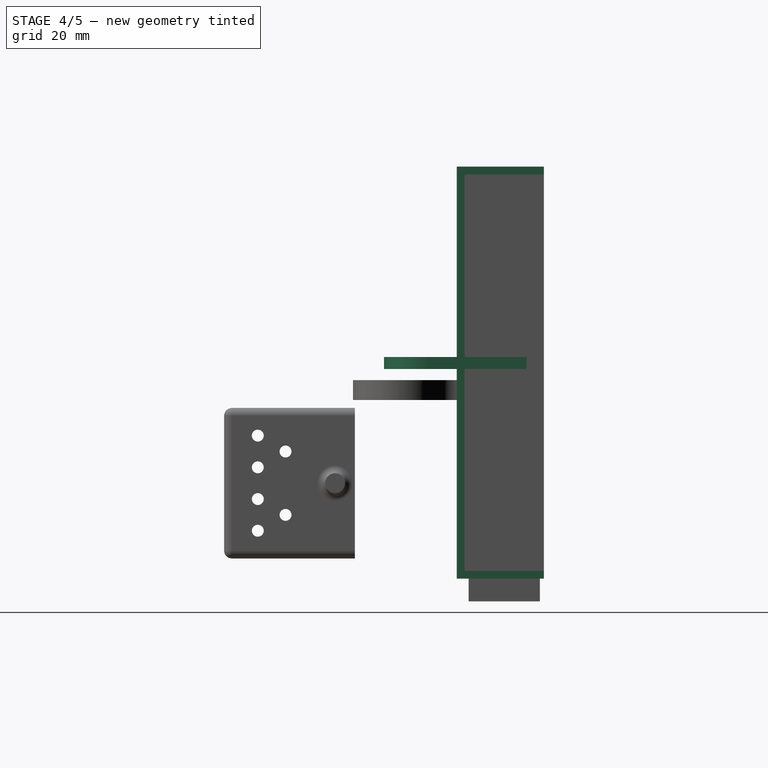
[diagram: stage 4 of 5 — right view after this stage's code; geometry added in this stage tinted green]
FEATURE [App::Point] Origin007  label="Origin009"
  Role = Origin
FEATURE [App::Point] Origin009  label="Origin011"
  Role = Origin
FEATURE [Part::Feature] Part__Feature011  label="PRT0012"
  shape: bbox 32 x 50.5 x 38 mm, 671 faces (baked)
FEATURE [Part::Feature] Part__Feature012  label="PRT0013"
  Placement = pos=(0,0,-2) rot=(0,0,1;3.14159rad)
  shape: bbox 7.033 x 7.036 x 5.513 mm, 32 faces (baked)
FEATURE [Part::Feature] Part__Feature013  label="PRT0014"
  Placement = pos=(9.5,8.5,14.5) rot=(0,0.707107,0.707107;3.14159rad)
  shape: bbox 4.1 x 4.088 x 30.71 mm, 30 faces (baked)
FEATURE [Part::Feature] Part__Feature014  label="PRT0015"
  Placement = pos=(-9.5,8.5,14.5) rot=(0,0.707107,0.707107;3.14159rad)
  shape: bbox 4.1 x 4.088 x 30.71 mm, 30 faces (baked)
FEATURE [Part::Feature] Part__Feature015  label="PRT0016"
  Placement = pos=(10.5,-33,14.5) rot=(0,0.707107,0.707107;3.14159rad)
  shape: bbox 4.1 x 4.088 x 30.71 mm, 30 faces (baked)
FEATURE [Part::Feature] Part__Feature016  label="PRT0017"
  Placement = pos=(-10.5,-33,14.5) rot=(0,0.707107,0.707107;3.14159rad)
  shape: bbox 4.1 x 4.088 x 30.71 mm, 30 faces (baked)
FEATURE [Part::Feature] Part__Feature017  label="PRT0018"
  Placement = pos=(5.05,-15.19,-9.75) rot=(-1,0,0;1.5708rad)
  shape: bbox 9.902 x 4.902 x 9.405 mm, 93 faces (baked)
FEATURE [Part::Feature] Part__Feature018  label="PRT0019"
  Placement = pos=(-4.95,-15.19,-9.75) rot=(-1,0,0;1.5708rad)
  shape: bbox 9.902 x 4.902 x 9.405 mm, 93 faces (baked)
FEATURE [Part::Feature] Part__Feature019  label="PRT0020"
  Placement = pos=(0,0,-18.4) rot=(0,0.707107,0.707107;3.14159rad)
  shape: bbox 4.984 x 4.984 x 7 mm, 133 faces (baked)
FEATURE [Part::Feature] Part__Feature020  label="PRT0021"
  Placement = pos=(0,0,19.16) rot=(0,0,1;1.5708rad)
  shape: bbox 22 x 22 x 6.702 mm, 170 faces (baked)
FEATURE [Part::Feature] Part__Feature021  label="PRT0022"
  Placement = pos=(0,0,19.48) rot=(0,0.707107,0.707107;3.14159rad)
  shape: bbox 7.815 x 6.706 x 9.6 mm, 27 faces (baked)
FEATURE [App::Part] ASM0002_ASM001
  Group = -> [Part__Feature011,Part__Feature012,Part__Feature013,Part__Feature014,Part__Feature015,Part__Feature016,Part__Feature017,Part__Feature018,Part__Feature019,Part__Feature020,Part__Feature021]
  Origin = -> Origin006
FEATURE [App::Part] ASM0001_ASM001
  Group = -> [ASM0002_ASM001]
  Origin = -> Origin008
  Placement = pos=(30,-22,0) rot=(0,0,1;1.5708rad)
FEATURE [PartDesign::ShapeBinder] CopyPart__Feature001
  Placement = pos=(7.86,7.86,9.485) rot=(0,0,1;0rad)
  TraceSupport = false
FEATURE [Sketcher::SketchObject] Sketch006
  ArcFitTolerance = 1e-06
  AttachmentSupport = -> [CopyPart__Feature001]
  ExternalTypes = [0]
  FullyConstrained = true
  MakeInternals = false
  MapMode = 5
  Placement = pos=(7.86,7.86,28.835) rot=(0,0,1;0rad)
  _ExternalGeoVersion = 1
  sketch-geometry (4):
    g0: LineSegment StartX=11.04 StartY=-2.7e-15 StartZ=0 EndX=11.04 EndY=25 EndZ=0
    g1: LineSegment StartX=11.04 StartY=25 StartZ=0 EndX=-10.96 EndY=25 EndZ=0
    g2: LineSegment StartX=-10.96 StartY=25 StartZ=0 EndX=-10.96 EndY=-2.62289e-05 EndZ=0
    g3: ArcOfCircle CenterX=0.04 CenterY=0 CenterZ=0 NormalX=0 NormalY=0 NormalZ=1 AngleXU=0 Radius=11 StartAngle=3.1416 EndAngle=6.28319
  constraints (12):
    c: Coincident(g0,g1)
    c: Coincident(g1,g2)
    c: Vertical(g0)
    c: Vertical(g2)
    c: Horizontal(g1)
    c: Distance(g0,g2) = 22
    c: Distance(g1,g0) = 25
    c: PointOnObject(g0,g-1)
    c: Tangent(g0,g3) = -1.5708
    c: Coincident(g3,g2)
    c: Radius(g3) = 11
    c: Distance(g3,g-2) = 10.96
FEATURE [PartDesign::Pad] Pad005
  Direction = (0,0,1)
  Length = 3
  Length2 = 10
  Placement = pos=(7.86,7.86,9.485) rot=(0,0,1;0rad)
  Profile = -> Sketch006
  ReferenceAxis = -> Sketch006 [N_Axis]
  Refine = true
  SideType = 0
  Suppressed = false
  Type = 0
  Type2 = 0
FEATURE [Sketcher::SketchObject] Sketch007
  ArcFitTolerance = 1e-06
  AttachmentSupport = -> [Pad005]
  ExternalTypes = [0]
  FullyConstrained = true
  MakeInternals = false
  MapMode = 5
  Placement = pos=(7.86,7.86,31.835) rot=(0,0,1;0rad)
  _ExternalGeoVersion = 1
  sketch-geometry (1):
    g0: Circle CenterX=0 CenterY=-7.8 CenterZ=0 NormalX=0 NormalY=0 NormalZ=1 AngleXU=0 Radius=1
  constraints (3):
    c: Diameter(g0) = 2
    c: PointOnObject(g0,g-2)
    c: Distance(g0,g-1) = 7.8
FEATURE [PartDesign::Hole] Hole001
  BaseFeature = -> Pad005
  BaseProfileType = 7
  CustomThreadClearance = 0
  Depth = 3
  DepthType = 0
  Diameter = 2.552
  DrillForDepth = false
  DrillPoint = 1
  DrillPointAngle = 118
  HoleCutCountersinkAngle = 90
  HoleCutCustomValues = false
  HoleCutDepth = 0
  HoleCutDiameter = 5.71648
  HoleCutType = 0
  ModelThread = false
  Placement = pos=(7.86,7.86,9.485) rot=(0,0,1;0rad)
  Profile = -> Sketch007
  Refine = true
  Suppressed = false
  Tapered = false
  TaperedAngle = 90
  ThreadClass = 0
  ThreadDepth = 3
  ThreadDepthType = 0
  ThreadDiameter = 2.2
  ThreadDirection = 0
  ThreadFit = 2
  ThreadSize = 7
  ThreadType = 1
  Threaded = false
  UseCustomThreadClearance = false
FEATURE [PartDesign::PolarPattern] PolarPattern
  Angle = 360
  Axis = -> Sketch007 [N_Axis]
  BaseFeature = -> Hole001
  Mode = 0
  Occurrences = 8
  Offset = 120
  Originals = -> [Hole001]
  Placement = pos=(7.86,7.86,9.485) rot=(0,0,1;0rad)
  Refine = true
  SpacingPattern = [0]
  Spacings = [-1,-1,-1,-1,-1,-1,-1]
  Suppressed = false
  TransformMode = 0
FEATURE [Sketcher::SketchObject] Sketch027
  ArcFitTolerance = 1e-06
  AttachmentSupport = -> [Fillet002]
  ExternalTypes = [0]
  FullyConstrained = true
  MakeInternals = false
  MapMode = 5
  Placement = pos=(14,-1.5e-15,19.16) rot=(0.57735,0.57735,0.57735;2.0944rad)
  _ExternalGeoVersion = 1
  sketch-geometry (4):
    g0: LineSegment StartX=17.2 StartY=-41.25 StartZ=0 EndX=37.2 EndY=-41.25 EndZ=0
    g1: LineSegment StartX=37.2 StartY=-41.25 StartZ=0 EndX=37.2 EndY=58.75 EndZ=0
    g2: LineSegment StartX=37.2 StartY=58.75 StartZ=0 EndX=17.2 EndY=58.75 EndZ=0
    g3: LineSegment StartX=17.2 StartY=58.75 StartZ=0 EndX=17.2 EndY=-41.25 EndZ=0
  constraints (12):
    c: Coincident(g0,g1)
    c: Coincident(g1,g2)
    c: Vertical(g1)
    c: Horizontal(g0)
    c: Horizontal(g2)
    c: Distance(g2,g1) = 20
    c: Distance(g0,g2) = 100
    c: Coincident(g3,g2)
    c: Coincident(g3,g0)
    c: Vertical(g3)
    c: Distance(g-1,g0) = 41.25
    c: Distance(g-2,g3) = 17.2
FEATURE [PartDesign::Pad] Pad013
  BaseFeature = -> Fillet002
  Direction = (1,0,0)
  Length = 3
  Length2 = 10
  Placement = pos=(0,0,19.16) rot=(0,0,1;1.5708rad)
  Profile = -> Sketch027
  ReferenceAxis = -> Sketch027 [N_Axis]
  Refine = true
  SideType = 0
  Suppressed = false
  Type = 0
  Type2 = 0
FEATURE [Sketcher::SketchObject] Sketch028
  ArcFitTolerance = 1e-06
  AttachmentSupport = -> [Pad013]
  ExternalTypes = [0]
  FullyConstrained = true
  MakeInternals = false
  MapMode = 5
  Placement = pos=(-1.9e-15,17.2,19.16) rot=(1,0,0;1.5708rad)
  _ExternalGeoVersion = 1
  sketch-geometry (4):
    g0: LineSegment StartX=14 StartY=-41.25 StartZ=0 EndX=19 EndY=-41.25 EndZ=0
    g1: LineSegment StartX=19 StartY=-41.25 StartZ=0 EndX=19 EndY=58.75 EndZ=0
    g2: LineSegment StartX=19 StartY=58.75 StartZ=0 EndX=14 EndY=58.75 EndZ=0
    g3: LineSegment StartX=14 StartY=58.75 StartZ=0 EndX=14 EndY=-41.25 EndZ=0
  constraints (12):
    c: Coincident(g0,g1)
    c: Coincident(g1,g2)
    c: Vertical(g1)
    c: Horizontal(g0)
    c: Horizontal(g2)
    c: Distance(g2,g1) = 5
    c: Distance(g0,g2) = 100
    c: Coincident(g3,g2)
    c: Coincident(g3,g0)
    c: Vertical(g3)
    c: Distance(g-2,g3) = 14
    c: Distance(g-1,g2) = 58.75
FEATURE [PartDesign::Pad] Pad014
  BaseFeature = -> Pad013
  Direction = (0,-1,2e-16)
  Length = 2
  Length2 = 10
  Placement = pos=(0,0,19.16) rot=(0,0,1;1.5708rad)
  Profile = -> Sketch028
  ReferenceAxis = -> Sketch028 [N_Axis]
  Refine = true
  SideType = 0
  Suppressed = false
  Type = 0
  Type2 = 0
FEATURE [Sketcher::SketchObject] Sketch029
  ArcFitTolerance = 1e-06
  AttachmentSupport = -> [Pad014]
  ExternalTypes = [0]
  FullyConstrained = true
  MakeInternals = false
  MapMode = 5
  Placement = pos=(-2.11e-14,0,77.91) rot=(0,0,1;1.5708rad)
  _ExternalGeoVersion = 1
  sketch-geometry (4):
    g0: LineSegment StartX=15.2 StartY=-14 StartZ=0 EndX=15.2 EndY=-19 EndZ=0
    g1: LineSegment StartX=15.2 StartY=-19 StartZ=0 EndX=37.2 EndY=-19 EndZ=0
    g2: LineSegment StartX=37.2 StartY=-19 StartZ=0 EndX=37.2 EndY=-14 EndZ=0
    g3: LineSegment StartX=37.2 StartY=-14 StartZ=0 EndX=15.2 EndY=-14 EndZ=0
  constraints (12):
    c: Coincident(g0,g1)
    c: Coincident(g1,g2)
    c: Horizontal(g1)
    c: Vertical(g0)
    c: Vertical(g2)
    c: Distance(g0,g2) = 22
    c: Distance(g2,g1) = 5
    c: Coincident(g3,g2)
    c: Coincident(g3,g0)
    c: Horizontal(g3)
    c: Distance(g-2,g0) = 15.2
    c: Distance(g-1,g1) = 19
FEATURE [PartDesign::Pad] Pad015
  BaseFeature = -> Pad014
  Direction = (0,0,1)
  Length = 2
  Length2 = 10
  Placement = pos=(0,0,19.16) rot=(0,0,1;1.5708rad)
  Profile = -> Sketch029
  ReferenceAxis = -> Sketch029 [N_Axis]
  Refine = true
  SideType = 0
  Suppressed = false
  Type = 0
  Type2 = 0
FEATURE [Sketcher::SketchObject] Sketch030
  ArcFitTolerance = 1e-06
  AttachmentSupport = -> [Pad015]
  ExternalTypes = [0]
  FullyConstrained = true
  MakeInternals = false
  MapMode = 5
  Placement = pos=(1.49e-14,0,-22.09) rot=(0.707107,0.707107,0;3.14159rad)
  _ExternalGeoVersion = 1
  sketch-geometry (4):
    g0: LineSegment StartX=37.2 StartY=14 StartZ=0 EndX=37.2 EndY=19 EndZ=0
    g1: LineSegment StartX=37.2 StartY=19 StartZ=0 EndX=15.2 EndY=19 EndZ=0
    g2: LineSegment StartX=15.2 StartY=19 StartZ=0 EndX=15.2 EndY=14 EndZ=0
    g3: LineSegment StartX=37.2 StartY=14 StartZ=0 EndX=15.2 EndY=14 EndZ=0
  constraints (12):
    c: Coincident(g0,g1)
    c: Coincident(g1,g2)
    c: Vertical(g0)
    c: Vertical(g2)
    c: Horizontal(g1)
    c: Distance(g0,g2) = 22
    c: Distance(g1,g0) = 5
    c: Coincident(g3,g0)
    c: Coincident(g3,g2)
    c: Horizontal(g3)
    c: Distance(g-2,g2) = 15.2
    c: Distance(g-1,g3) = 14
FEATURE [PartDesign::Pad] Pad016
  BaseFeature = -> Pad015
  Direction = (0,0,-1)
  Length = 2
  Length2 = 10
  Placement = pos=(0,0,19.16) rot=(0,0,1;1.5708rad)
  Profile = -> Sketch030
  ReferenceAxis = -> Sketch030 [N_Axis]
  Refine = true
  SideType = 0
  Suppressed = false
  Type = 0
  Type2 = 0
FEATURE [PartDesign::Fillet] Fillet004
  Base = -> Pad016 [Edge25,Edge28,Edge26,Edge27]
  BaseFeature = -> Pad016
  Placement = pos=(0,0,19.16) rot=(0,0,1;1.5708rad)
  Radius = 4
  Refine = true
  SupportTransform = false
  Suppressed = false
  UseAllEdges = false
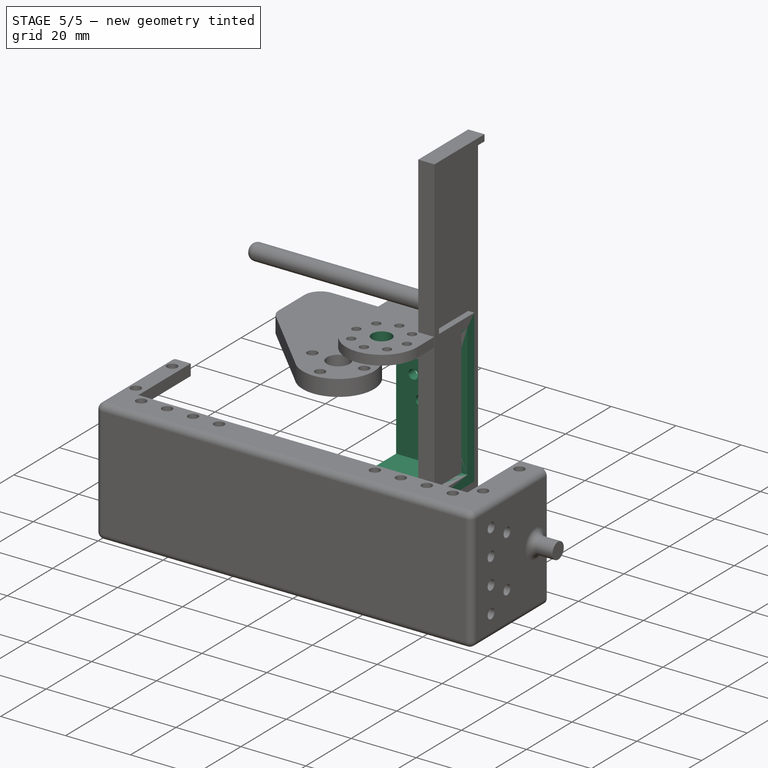
[diagram: stage 5 of 5 — iso view after this stage's code; geometry added in this stage tinted green]
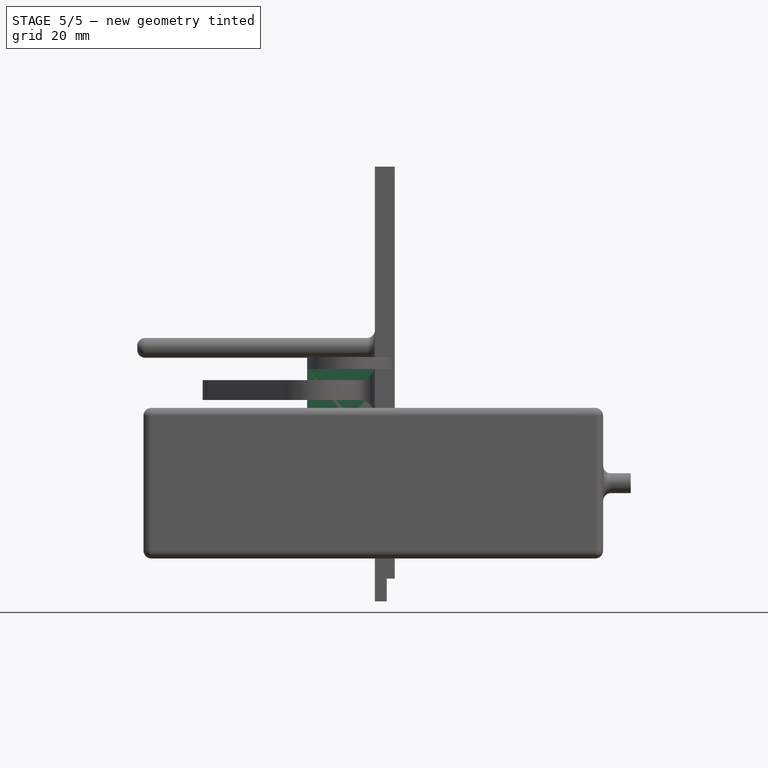
[diagram: stage 5 of 5 — front view after this stage's code; geometry added in this stage tinted green]
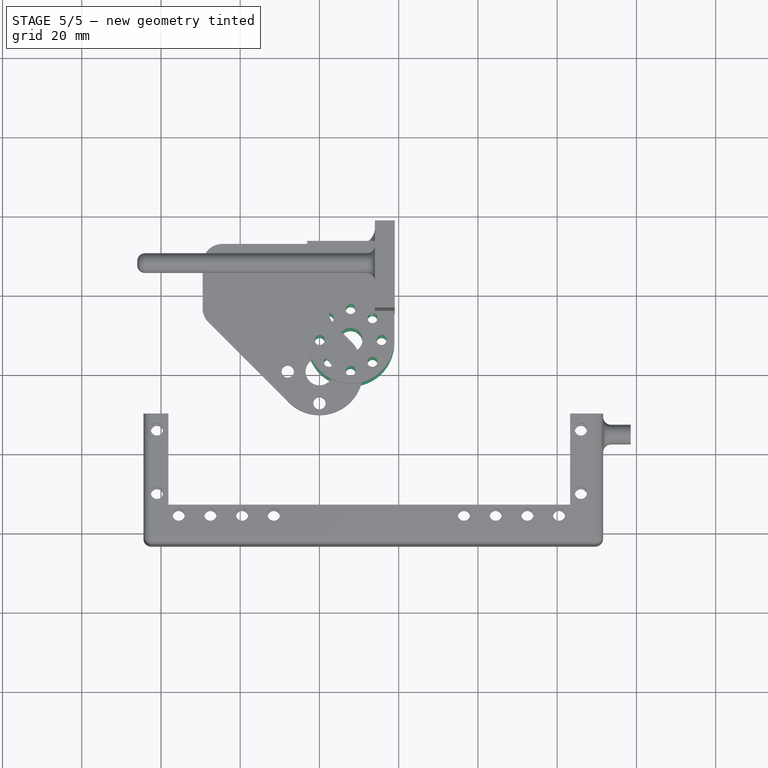
[diagram: stage 5 of 5 — top view after this stage's code; geometry added in this stage tinted green]
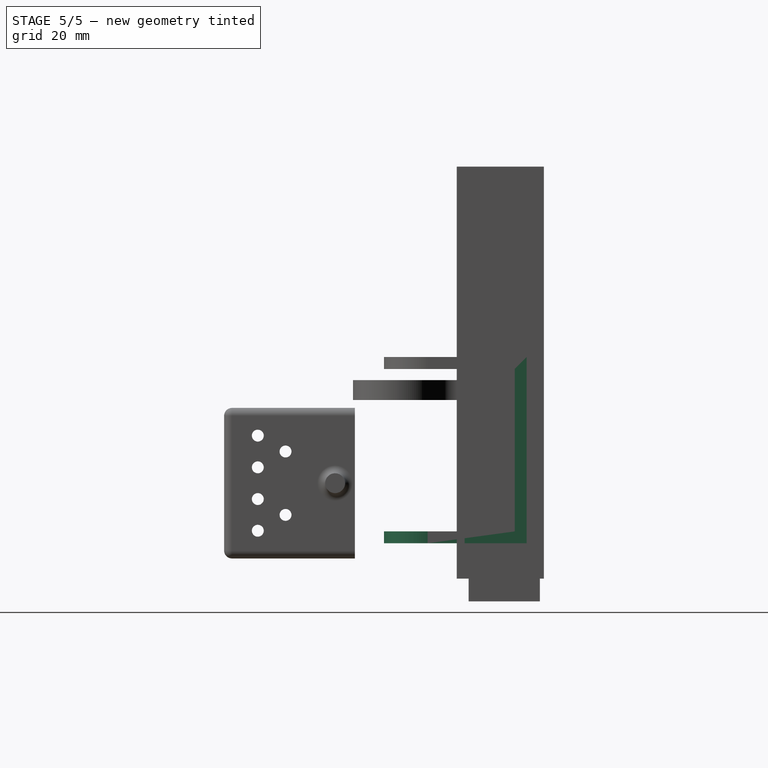
[diagram: stage 5 of 5 — right view after this stage's code; geometry added in this stage tinted green]
FEATURE [Sketcher::SketchObject] Sketch008
  ArcFitTolerance = 1e-06
  AttachmentSupport = -> [PolarPattern]
  ExternalTypes = [0]
  FullyConstrained = true
  MakeInternals = false
  MapMode = 5
  Placement = pos=(7.86,7.86,31.835) rot=(0,0,1;0rad)
  _ExternalGeoVersion = 1
  sketch-geometry (1):
    g0: Circle CenterX=0 CenterY=0 CenterZ=0 NormalX=0 NormalY=0 NormalZ=1 AngleXU=0 Radius=4
  constraints (2):
    c: Diameter(g0) = 8
    c: Coincident(g0,g-1)
FEATURE [PartDesign::Hole] Hole002
  BaseFeature = -> PolarPattern
  BaseProfileType = 7
  CustomThreadClearance = 0
  Depth = 3
  DepthType = 0
  Diameter = 6
  DrillForDepth = false
  DrillPoint = 1
  DrillPointAngle = 118
  HoleCutCountersinkAngle = 90
  HoleCutCustomValues = false
  HoleCutDepth = 0
  HoleCutDiameter = 0
  HoleCutType = 0
  ModelThread = false
  Placement = pos=(7.86,7.86,9.485) rot=(0,0,1;0rad)
  Profile = -> Sketch008
  Refine = true
  Suppressed = false
  Tapered = false
  TaperedAngle = 90
  ThreadClass = 0
  ThreadDepth = 3
  ThreadDepthType = 0
  ThreadDiameter = 6
  ThreadDirection = 0
  ThreadFit = 0
  ThreadSize = 0
  ThreadType = 0
  Threaded = false
  UseCustomThreadClearance = false
FEATURE [Sketcher::SketchObject] Sketch009
  ArcFitTolerance = 1e-06
  AttachmentSupport = -> [Hole002]
  ExternalTypes = [0]
  FullyConstrained = true
  MakeInternals = false
  MapMode = 5
  Placement = pos=(7.86,7.86,28.835) rot=(1,0,0;3.14159rad)
  _ExternalGeoVersion = 1
  sketch-geometry (4):
    g0: LineSegment StartX=11.04 StartY=-25 StartZ=0 EndX=11.04 EndY=-22 EndZ=0
    g1: LineSegment StartX=11.04 StartY=-22 StartZ=0 EndX=-10.96 EndY=-22 EndZ=0
    g2: LineSegment StartX=-10.96 StartY=-22 StartZ=0 EndX=-10.96 EndY=-25 EndZ=0
    g3: LineSegment StartX=-10.96 StartY=-25 StartZ=0 EndX=11.04 EndY=-25 EndZ=0
  constraints (12):
    c: Coincident(g0,g1)
    c: Coincident(g1,g2)
    c: Coincident(g2,g3)
    c: Coincident(g3,g0)
    c: Vertical(g0)
    c: Vertical(g2)
    c: Horizontal(g1)
    c: Horizontal(g3)
    c: Distance(g0,g2) = 22
    c: Distance(g1,g3) = 3
    c: Distance(g-1,g1) = 22
    c: Distance(g-2,g2) = 10.96
FEATURE [PartDesign::Pad] Pad006
  BaseFeature = -> Hole002
  Direction = (0,0,-1)
  Length = 41
  Length2 = 10
  Placement = pos=(7.86,7.86,9.485) rot=(0,0,1;0rad)
  Profile = -> Sketch009
  ReferenceAxis = -> Sketch009 [N_Axis]
  Refine = true
  SideType = 0
  Suppressed = false
  Type = 0
  Type2 = 0
FEATURE [Sketcher::SketchObject] Sketch010
  ArcFitTolerance = 1e-06
  AttachmentSupport = -> [Pad006]
  ExternalTypes = [0]
  FullyConstrained = true
  MakeInternals = false
  MapMode = 5
  Placement = pos=(7.86,7.86,-12.165) rot=(1,0,0;3.14159rad)
  _ExternalGeoVersion = 1
  sketch-geometry (4):
    g0: LineSegment StartX=11.04 StartY=-25 StartZ=0 EndX=11.04 EndY=-3.6e-15 EndZ=0
    g1: LineSegment StartX=-10.96 StartY=3.4e-15 StartZ=0 EndX=-10.96 EndY=-25 EndZ=0
    g2: LineSegment StartX=-10.96 StartY=-25 StartZ=0 EndX=11.04 EndY=-25 EndZ=0
    g3: ArcOfCircle CenterX=0.04 CenterY=2.91144e-05 CenterZ=0 NormalX=0 NormalY=0 NormalZ=1 AngleXU=0 Radius=11 StartAngle=6.28318 EndAngle=9.42478
  constraints (13):
    c: Coincident(g1,g2)
    c: Coincident(g2,g0)
    c: Vertical(g0)
    c: Vertical(g1)
    c: Horizontal(g2)
    c: Distance(g0,g1) = 22
    c: Distance(g0,g2) = 25
    c: Distance(g-1,g2) = 25
    c: Distance(g-2,g1) = 10.96
    c: Coincident(g3,g0)
    c: Radius(g3) = 11
    c: Equal(g1,g0)
    c: Coincident(g3,g1)
FEATURE [PartDesign::Pad] Pad007
  BaseFeature = -> Pad006
  Direction = (0,0,-1)
  Length = 3
  Length2 = 10
  Placement = pos=(7.86,7.86,9.485) rot=(0,0,1;0rad)
  Profile = -> Sketch010
  ReferenceAxis = -> Sketch010 [N_Axis]
  Refine = true
  SideType = 0
  Suppressed = false
  Type = 0
  Type2 = 0
FEATURE [Sketcher::SketchObject] Sketch011
  ArcFitTolerance = 1e-06
  AttachmentSupport = -> [Pad007]
  ExternalTypes = [0]
  FullyConstrained = true
  MakeInternals = false
  MapMode = 5
  Placement = pos=(7.86,7.86,-15.165) rot=(1,0,0;3.14159rad)
  _ExternalGeoVersion = 1
  sketch-geometry (1):
    g0: Circle CenterX=0 CenterY=7.8 CenterZ=0 NormalX=0 NormalY=0 NormalZ=1 AngleXU=0 Radius=1
  constraints (3):
    c: Diameter(g0) = 2
    c: PointOnObject(g0,g-2)
    c: Distance(g0,g-1) = 7.8
FEATURE [PartDesign::Hole] Hole003
  BaseFeature = -> Pad007
  BaseProfileType = 7
  CustomThreadClearance = 0
  Depth = 3
  DepthType = 0
  Diameter = 2.552
  DrillForDepth = false
  DrillPoint = 1
  DrillPointAngle = 118
  HoleCutCountersinkAngle = 90
  HoleCutCustomValues = false
  HoleCutDepth = 0
  HoleCutDiameter = 0
  HoleCutType = 0
  ModelThread = false
  Placement = pos=(7.86,7.86,9.485) rot=(0,0,1;0rad)
  Profile = -> Sketch011
  Refine = true
  Suppressed = false
  Tapered = false
  TaperedAngle = 90
  ThreadClass = 0
  ThreadDepth = 3
  ThreadDepthType = 0
  ThreadDiameter = 2.2
  ThreadDirection = 0
  ThreadFit = 2
  ThreadSize = 7
  ThreadType = 1
  Threaded = false
  UseCustomThreadClearance = false
FEATURE [PartDesign::PolarPattern] PolarPattern001
  Angle = 360
  Axis = -> Sketch011 [N_Axis]
  BaseFeature = -> Hole003
  Mode = 0
  Occurrences = 8
  Offset = 120
  Originals = -> [Hole003]
  Placement = pos=(7.86,7.86,9.485) rot=(0,0,1;0rad)
  Refine = true
  SpacingPattern = [0]
  Spacings = [-1,-1,-1,-1,-1,-1,-1]
  Suppressed = false
  TransformMode = 0
FEATURE [Sketcher::SketchObject] Sketch012
  ArcFitTolerance = 1e-06
  AttachmentSupport = -> [PolarPattern001]
  ExternalTypes = [0]
  FullyConstrained = true
  MakeInternals = false
  MapMode = 5
  Placement = pos=(7.86,7.86,-15.165) rot=(1,0,0;3.14159rad)
  _ExternalGeoVersion = 1
  sketch-geometry (1):
    g0: Circle CenterX=0 CenterY=0 CenterZ=0 NormalX=0 NormalY=0 NormalZ=1 AngleXU=0 Radius=4
  constraints (2):
    c: Diameter(g0) = 8
    c: Coincident(g0,g-1)
FEATURE [PartDesign::Hole] Hole004
  BaseFeature = -> PolarPattern001
  BaseProfileType = 7
  CustomThreadClearance = 0
  Depth = 3
  DepthType = 0
  Diameter = 6
  DrillForDepth = false
  DrillPoint = 1
  DrillPointAngle = 118
  HoleCutCountersinkAngle = 90
  HoleCutCustomValues = false
  HoleCutDepth = 0
  HoleCutDiameter = 0
  HoleCutType = 0
  ModelThread = false
  Placement = pos=(7.86,7.86,9.485) rot=(0,0,1;0rad)
  Profile = -> Sketch012
  Refine = true
  Suppressed = false
  Tapered = false
  TaperedAngle = 90
  ThreadClass = 0
  ThreadDepth = 3
  ThreadDepthType = 0
  ThreadDiameter = 6
  ThreadDirection = 0
  ThreadFit = 0
  ThreadSize = 0
  ThreadType = 0
  Threaded = false
  UseCustomThreadClearance = false
FEATURE [App::Point] Origin010  label="Origin012"
  Role = Origin
FEATURE [Sketcher::SketchObject] Sketch014
  ArcFitTolerance = 1e-06
  AttachmentSupport = -> [Hole004]
  ExternalTypes = [0]
  FullyConstrained = true
  MakeInternals = false
  MapMode = 5
  Placement = pos=(7.86,32.86,9.485) rot=(0,0.707107,0.707107;3.14159rad)
  _ExternalGeoVersion = 1
  sketch-geometry (1):
    g0: Circle CenterX=0 CenterY=6 CenterZ=0 NormalX=0 NormalY=0 NormalZ=1 AngleXU=0 Radius=1.1
  constraints (3):
    c: Diameter(g0) = 2.2
    c: PointOnObject(g0,g-2)
    c: Distance(g0,g-1) = 6
FEATURE [PartDesign::Hole] Hole005
  BaseFeature = -> Hole004
  BaseProfileType = 7
  CustomThreadClearance = 0
  Depth = 7
  DepthType = 0
  Diameter = 2.9
  DrillForDepth = false
  DrillPoint = 1
  DrillPointAngle = 118
  HoleCutCountersinkAngle = 90
  HoleCutCustomValues = false
  HoleCutDepth = 0
  HoleCutDiameter = 0
  HoleCutType = 0
  ModelThread = false
  Placement = pos=(7.86,7.86,9.485) rot=(0,0,1;0rad)
  Profile = -> Sketch014
  Refine = true
  Suppressed = false
  Tapered = false
  TaperedAngle = 90
  ThreadClass = 0
  ThreadDepth = 7
  ThreadDepthType = 0
  ThreadDiameter = 2.5
  ThreadDirection = 0
  ThreadFit = 0
  ThreadSize = 8
  ThreadType = 1
  Threaded = false
  UseCustomThreadClearance = false
FEATURE [PartDesign::PolarPattern] PolarPattern002
  Angle = 360
  Axis = -> Sketch014 [N_Axis]
  BaseFeature = -> Hole005
  Mode = 0
  Occurrences = 5
  Offset = 120
  Originals = -> [Hole005]
  Placement = pos=(7.86,7.86,9.485) rot=(0,0,1;0rad)
  Refine = true
  SpacingPattern = [0]
  Spacings = [-1,-1,-1,-1]
  Suppressed = false
  TransformMode = 0
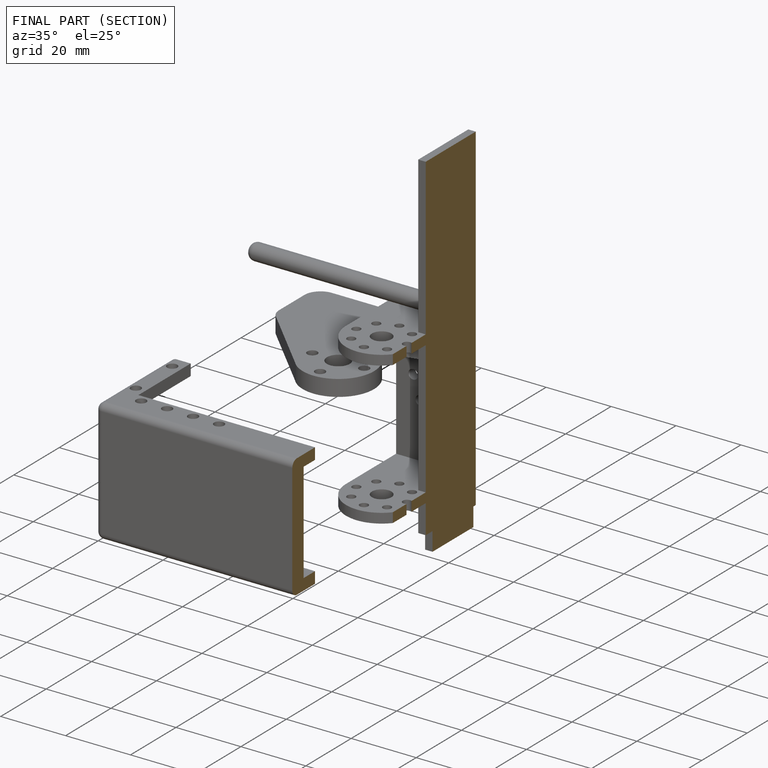
[diagram: finished part — half-section view (interior)]
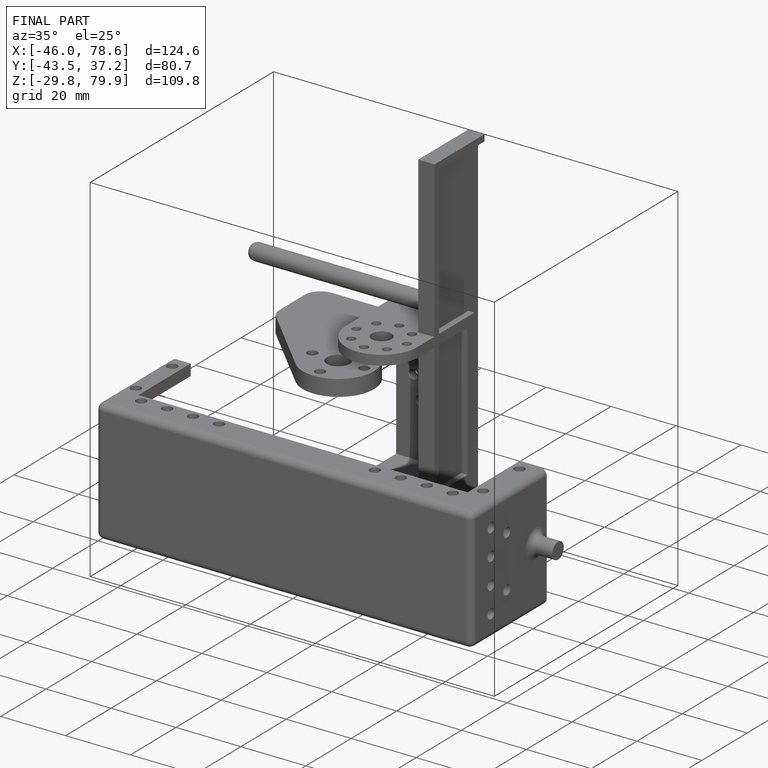
[diagram: finished part — iso view with bounding-box wireframe]
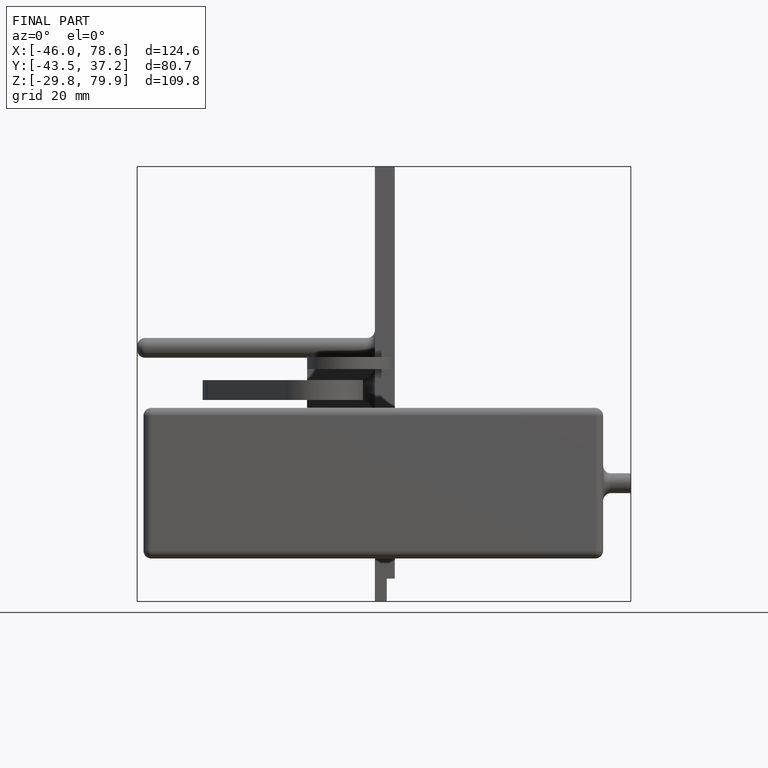
[diagram: finished part — front view with bounding-box wireframe]
